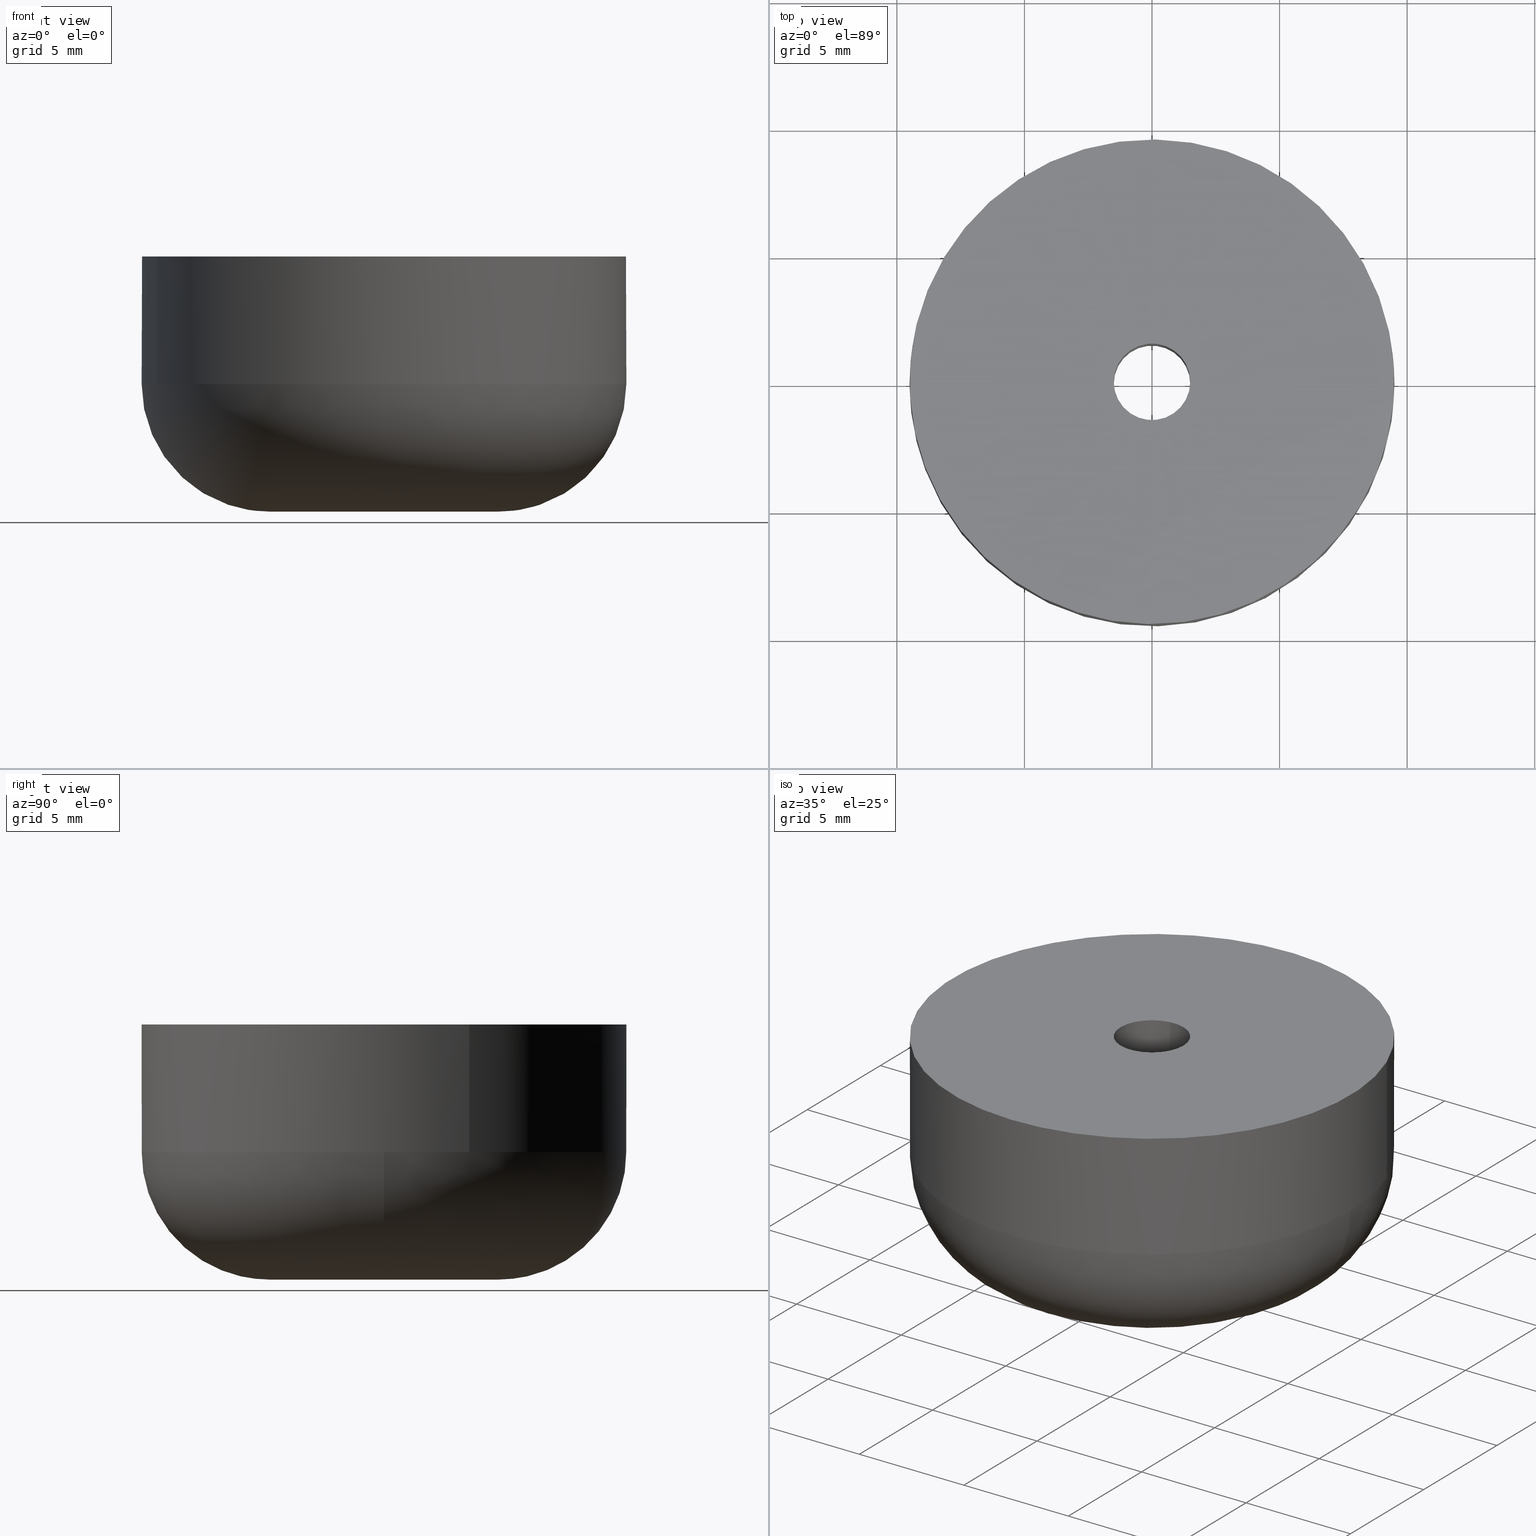
[diagram: canonical four-view strip — front | top / right | iso, engineering-drawing reading convention]
A machine part, canonical four-view strip (front | top / right | iso — engineering-drawing reading convention). The complete STEP part file that produces these views, byte-faithful:
ISO-10303-21;
HEADER;

FILE_DESCRIPTION( (''), '2;1');
FILE_NAME ('PC50.8404.TM_SK_1910_13818.stp','2019-12-20T12:48:28',(''),(''),'spGate 15.6.1','','');

FILE_SCHEMA (('AUTOMOTIVE_DESIGN'));
ENDSEC;

DATA;
#10=(GEOMETRIC_REPRESENTATION_CONTEXT(3) GLOBAL_UNCERTAINTY_ASSIGNED_CONTEXT((#12)) GLOBAL_UNIT_ASSIGNED_CONTEXT((#13,#14,#15)) REPRESENTATION_CONTEXT('ID1','3D'));
#12=UNCERTAINTY_MEASURE_WITH_UNIT(LENGTH_MEASURE(0.01),#16,'DISTANCE_ACCURACY_VALUE','Maximum model space distance between geometric entities at asserted connectivities');
#13=(NAMED_UNIT(*) SI_UNIT($,.STERADIAN.) SOLID_ANGLE_UNIT());
#14=(CONVERSION_BASED_UNIT('DEGREE',#35) NAMED_UNIT(#36) PLANE_ANGLE_UNIT());
#15=(LENGTH_UNIT() NAMED_UNIT(*) SI_UNIT(.MILLI.,.METRE.));
#16=(LENGTH_UNIT() NAMED_UNIT(*) SI_UNIT(.MILLI.,.METRE.));
#17=AXIS2_PLACEMENT_3D('',#38,#39,#40);
#18=AXIS2_PLACEMENT_3D('',#41,#42,#43);
#19=PRODUCT_DEFINITION('','',#48,#49);
#20=AXIS2_PLACEMENT_3D('',#50,#51,#52);
#21=AXIS2_PLACEMENT_3D('',#53,#54,#55);
#22=SHAPE_REPRESENTATION('Assembly',(#18,#20,#21),#10);
#23=AXIS2_PLACEMENT_3D('',#58,#59,#60);
#24=PRODUCT_DEFINITION('','',#65,#66);
#25=SHAPE_REPRESENTATION('washer',(#23),#10);
#26=ITEM_DEFINED_TRANSFORMATION('','',#20,#23);
#27=(REPRESENTATION_RELATIONSHIP('','',#22,#25) REPRESENTATION_RELATIONSHIP_WITH_TRANSFORMATION(#26) SHAPE_REPRESENTATION_RELATIONSHIP());
#29=AXIS2_PLACEMENT_3D('',#73,#74,#75);
#30=PRODUCT_DEFINITION('','',#80,#81);
#31=SHAPE_REPRESENTATION('rubber foot',(#29),#10);
#32=ITEM_DEFINED_TRANSFORMATION('','',#21,#29);
#33=(REPRESENTATION_RELATIONSHIP('','',#22,#31) REPRESENTATION_RELATIONSHIP_WITH_TRANSFORMATION(#32) SHAPE_REPRESENTATION_RELATIONSHIP());
#35=PLANE_ANGLE_MEASURE_WITH_UNIT(PLANE_ANGLE_MEASURE(0.01745329252),#37);
#36=DIMENSIONAL_EXPONENTS(0.0,0.0,0.0,0.0,0.0,0.0,0.0);
#37=(NAMED_UNIT(*) PLANE_ANGLE_UNIT() SI_UNIT($,.RADIAN.));
#38=CARTESIAN_POINT('',(0.00000000000E+000,0.00000000000E+000,0.00000000000E+000));
#39=DIRECTION('',(0.00000000000E+000,0.00000000000E+000,1.00000000000E+000));
#40=DIRECTION('',(1.00000000000E+000,0.00000000000E+000,0.00000000000E+000));
#41=CARTESIAN_POINT('',(0.00000000000E+000,0.00000000000E+000,0.00000000000E+000));
#42=DIRECTION('',(0.00000000000E+000,0.00000000000E+000,1.00000000000E+000));
#43=DIRECTION('',(1.00000000000E+000,0.00000000000E+000,0.00000000000E+000));
#44=APPLICATION_CONTEXT('configuration controlled 3d designs of mechanical parts and assemblies');
#45=APPLICATION_PROTOCOL_DEFINITION('International Standard','automotive_design',1999,#44);
#46=PRODUCT_CONTEXT('',#44,'');
#47=PRODUCT('Assembly','Assembly','',(#46));
#48=PRODUCT_DEFINITION_FORMATION_WITH_SPECIFIED_SOURCE('','',#47,.NOT_KNOWN.);
#49=PRODUCT_DEFINITION_CONTEXT('design',#44,'');
#50=CARTESIAN_POINT('',(0.00000000000E+000,0.00000000000E+000,0.00000000000E+000));
#51=DIRECTION('',(0.00000000000E+000,0.00000000000E+000,1.00000000000E+000));
#52=DIRECTION('',(1.00000000000E+000,0.00000000000E+000,0.00000000000E+000));
#53=CARTESIAN_POINT('',(0.00000000000E+000,0.00000000000E+000,0.00000000000E+000));
#54=DIRECTION('',(0.00000000000E+000,0.00000000000E+000,1.00000000000E+000));
#55=DIRECTION('',(1.00000000000E+000,0.00000000000E+000,0.00000000000E+000));
#56=PRODUCT_DEFINITION_SHAPE('','',#19);
#57=SHAPE_DEFINITION_REPRESENTATION(#56,#22);
#58=CARTESIAN_POINT('',(0.00000000000E+000,0.00000000000E+000,0.00000000000E+000));
#59=DIRECTION('',(0.00000000000E+000,0.00000000000E+000,1.00000000000E+000));
#60=DIRECTION('',(1.00000000000E+000,0.00000000000E+000,0.00000000000E+000));
#61=APPLICATION_CONTEXT('configuration controlled 3d designs of mechanical parts and assemblies');
#62=APPLICATION_PROTOCOL_DEFINITION('International Standard','automotive_design',1999,#61);
#63=PRODUCT_CONTEXT('',#61,'');
#64=PRODUCT('washer','washer','',(#63));
#65=PRODUCT_DEFINITION_FORMATION_WITH_SPECIFIED_SOURCE('','',#64,.NOT_KNOWN.);
#66=PRODUCT_DEFINITION_CONTEXT('design',#61,'');
#67=PRODUCT_DEFINITION_SHAPE('','',#24);
#68=SHAPE_DEFINITION_REPRESENTATION(#67,#25);
#69=NEXT_ASSEMBLY_USAGE_OCCURRENCE('','','',#19,#24,'');
#70=PRODUCT_DEFINITION_SHAPE('','',#69);
#71=CONTEXT_DEPENDENT_SHAPE_REPRESENTATION(#27,#70);
#73=CARTESIAN_POINT('',(0.00000000000E+000,0.00000000000E+000,0.00000000000E+000));
#74=DIRECTION('',(0.00000000000E+000,0.00000000000E+000,1.00000000000E+000));
#75=DIRECTION('',(1.00000000000E+000,0.00000000000E+000,0.00000000000E+000));
#76=APPLICATION_CONTEXT('configuration controlled 3d designs of mechanical parts and assemblies');
#77=APPLICATION_PROTOCOL_DEFINITION('International Standard','automotive_design',1999,#76);
#78=PRODUCT_CONTEXT('',#76,'');
#79=PRODUCT('rubber foot','rubber foot','',(#78));
#80=PRODUCT_DEFINITION_FORMATION_WITH_SPECIFIED_SOURCE('','',#79,.NOT_KNOWN.);
#81=PRODUCT_DEFINITION_CONTEXT('design',#76,'');
#82=PRODUCT_DEFINITION_SHAPE('','',#30);
#83=SHAPE_DEFINITION_REPRESENTATION(#82,#31);
#84=NEXT_ASSEMBLY_USAGE_OCCURRENCE('','','',#19,#30,'');
#85=PRODUCT_DEFINITION_SHAPE('','',#84);
#86=CONTEXT_DEPENDENT_SHAPE_REPRESENTATION(#33,#85);
#88=SHAPE_REPRESENTATION_RELATIONSHIP('','',#25,#91);
#89=SHAPE_REPRESENTATION_RELATIONSHIP('','',#31,#93);
#90=MANIFOLD_SOLID_BREP('washer',#94);
#91=ADVANCED_BREP_SHAPE_REPRESENTATION('washer',(#90),#10);
#92=MANIFOLD_SOLID_BREP('rubber foot',#103);
#93=ADVANCED_BREP_SHAPE_REPRESENTATION('rubber foot',(#92),#10);
#94=CLOSED_SHELL('',(#112,#113,#114,#115,#116,#117));
#95=COLOUR_RGB('',0.00000000000E+000,0.00000000000E+000,0.00000000000E+000);
#96=FILL_AREA_STYLE_COLOUR('',#95);
#97=FILL_AREA_STYLE('',(#96));
#98=SURFACE_STYLE_FILL_AREA(#97);
#99=SURFACE_SIDE_STYLE('',(#98));
#100=SURFACE_STYLE_USAGE(.BOTH.,#99);
#101=PRESENTATION_STYLE_ASSIGNMENT((#100));
#102=STYLED_ITEM('',(#101),#90);
#103=CLOSED_SHELL('',(#118,#119,#120,#121,#122,#123,#124,#125,#126,#127,#128,#129,#130,#131));
#104=COLOUR_RGB('',0.00000000000E+000,0.00000000000E+000,0.00000000000E+000);
#105=FILL_AREA_STYLE_COLOUR('',#104);
#106=FILL_AREA_STYLE('',(#105));
#107=SURFACE_STYLE_FILL_AREA(#106);
#108=SURFACE_SIDE_STYLE('',(#107));
#109=SURFACE_STYLE_USAGE(.BOTH.,#108);
#110=PRESENTATION_STYLE_ASSIGNMENT((#109));
#111=STYLED_ITEM('',(#110),#92);
#112=ADVANCED_FACE('',(#133,#134),#132,.F.);
#113=ADVANCED_FACE('',(#144,#145),#143,.F.);
#114=ADVANCED_FACE('',(#155),#154,.F.);
#115=ADVANCED_FACE('',(#165),#164,.F.);
#116=ADVANCED_FACE('',(#175),#174,.T.);
#117=ADVANCED_FACE('',(#185),#184,.T.);
#118=ADVANCED_FACE('',(#195,#196),#194,.F.);
#119=ADVANCED_FACE('',(#206,#207),#205,.F.);
#120=ADVANCED_FACE('',(#217,#218),#216,.F.);
#121=ADVANCED_FACE('',(#228,#229),#227,.F.);
#122=ADVANCED_FACE('',(#239),#238,.T.);
#123=ADVANCED_FACE('',(#249),#248,.T.);
#124=ADVANCED_FACE('',(#259),#258,.F.);
#125=ADVANCED_FACE('',(#269),#268,.F.);
#126=ADVANCED_FACE('',(#279),#278,.T.);
#127=ADVANCED_FACE('',(#289),#288,.T.);
#128=ADVANCED_FACE('',(#299),#298,.F.);
#129=ADVANCED_FACE('',(#309),#308,.F.);
#130=ADVANCED_FACE('',(#319),#318,.F.);
#131=ADVANCED_FACE('',(#329),#328,.F.);
#132=PLANE('',#341);
#133=FACE_OUTER_BOUND('',#342,.T.);
#134=FACE_BOUND('',#343,.T.);
#135=COLOUR_RGB('',1.00000000000E+000,1.00000000000E+000,1.00000000000E+000);
#136=FILL_AREA_STYLE_COLOUR('',#135);
#137=FILL_AREA_STYLE('',(#136));
#138=SURFACE_STYLE_FILL_AREA(#137);
#139=SURFACE_SIDE_STYLE('',(#138));
#140=SURFACE_STYLE_USAGE(.BOTH.,#139);
#141=PRESENTATION_STYLE_ASSIGNMENT((#140));
#142=STYLED_ITEM('',(#141),#112);
#143=PLANE('',#347);
#144=FACE_OUTER_BOUND('',#348,.T.);
#145=FACE_BOUND('',#349,.T.);
#146=COLOUR_RGB('',1.00000000000E+000,1.00000000000E+000,1.00000000000E+000);
#147=FILL_AREA_STYLE_COLOUR('',#146);
#148=FILL_AREA_STYLE('',(#147));
#149=SURFACE_STYLE_FILL_AREA(#148);
#150=SURFACE_SIDE_STYLE('',(#149));
#151=SURFACE_STYLE_USAGE(.BOTH.,#150);
#152=PRESENTATION_STYLE_ASSIGNMENT((#151));
#153=STYLED_ITEM('',(#152),#113);
#154=CYLINDRICAL_SURFACE('',#353,1.50000000000E+000);
#155=FACE_OUTER_BOUND('',#354,.T.);
#156=COLOUR_RGB('',1.00000000000E+000,1.00000000000E+000,1.00000000000E+000);
#157=FILL_AREA_STYLE_COLOUR('',#156);
#158=FILL_AREA_STYLE('',(#157));
#159=SURFACE_STYLE_FILL_AREA(#158);
#160=SURFACE_SIDE_STYLE('',(#159));
#161=SURFACE_STYLE_USAGE(.BOTH.,#160);
#162=PRESENTATION_STYLE_ASSIGNMENT((#161));
#163=STYLED_ITEM('',(#162),#114);
#164=CYLINDRICAL_SURFACE('',#358,1.50000000000E+000);
#165=FACE_OUTER_BOUND('',#359,.T.);
#166=COLOUR_RGB('',1.00000000000E+000,1.00000000000E+000,1.00000000000E+000);
#167=FILL_AREA_STYLE_COLOUR('',#166);
#168=FILL_AREA_STYLE('',(#167));
#169=SURFACE_STYLE_FILL_AREA(#168);
#170=SURFACE_SIDE_STYLE('',(#169));
#171=SURFACE_STYLE_USAGE(.BOTH.,#170);
#172=PRESENTATION_STYLE_ASSIGNMENT((#171));
#173=STYLED_ITEM('',(#172),#115);
#174=CYLINDRICAL_SURFACE('',#363,4.50000000000E+000);
#175=FACE_OUTER_BOUND('',#364,.T.);
#176=COLOUR_RGB('',1.00000000000E+000,1.00000000000E+000,1.00000000000E+000);
#177=FILL_AREA_STYLE_COLOUR('',#176);
#178=FILL_AREA_STYLE('',(#177));
#179=SURFACE_STYLE_FILL_AREA(#178);
#180=SURFACE_SIDE_STYLE('',(#179));
#181=SURFACE_STYLE_USAGE(.BOTH.,#180);
#182=PRESENTATION_STYLE_ASSIGNMENT((#181));
#183=STYLED_ITEM('',(#182),#116);
#184=CYLINDRICAL_SURFACE('',#368,4.50000000000E+000);
#185=FACE_OUTER_BOUND('',#369,.T.);
#186=COLOUR_RGB('',1.00000000000E+000,1.00000000000E+000,1.00000000000E+000);
#187=FILL_AREA_STYLE_COLOUR('',#186);
#188=FILL_AREA_STYLE('',(#187));
#189=SURFACE_STYLE_FILL_AREA(#188);
#190=SURFACE_SIDE_STYLE('',(#189));
#191=SURFACE_STYLE_USAGE(.BOTH.,#190);
#192=PRESENTATION_STYLE_ASSIGNMENT((#191));
#193=STYLED_ITEM('',(#192),#117);
#194=PLANE('',#373);
#195=FACE_OUTER_BOUND('',#374,.T.);
#196=FACE_BOUND('',#375,.T.);
#197=COLOUR_RGB('',1.00000000000E+000,1.00000000000E+000,1.00000000000E+000);
#198=FILL_AREA_STYLE_COLOUR('',#197);
#199=FILL_AREA_STYLE('',(#198));
#200=SURFACE_STYLE_FILL_AREA(#199);
#201=SURFACE_SIDE_STYLE('',(#200));
#202=SURFACE_STYLE_USAGE(.BOTH.,#201);
#203=PRESENTATION_STYLE_ASSIGNMENT((#202));
#204=STYLED_ITEM('',(#203),#118);
#205=PLANE('',#379);
#206=FACE_OUTER_BOUND('',#380,.T.);
#207=FACE_BOUND('',#381,.T.);
#208=COLOUR_RGB('',1.00000000000E+000,1.00000000000E+000,1.00000000000E+000);
#209=FILL_AREA_STYLE_COLOUR('',#208);
#210=FILL_AREA_STYLE('',(#209));
#211=SURFACE_STYLE_FILL_AREA(#210);
#212=SURFACE_SIDE_STYLE('',(#211));
#213=SURFACE_STYLE_USAGE(.BOTH.,#212);
#214=PRESENTATION_STYLE_ASSIGNMENT((#213));
#215=STYLED_ITEM('',(#214),#119);
#216=PLANE('',#385);
#217=FACE_OUTER_BOUND('',#386,.T.);
#218=FACE_BOUND('',#387,.T.);
#219=COLOUR_RGB('',1.00000000000E+000,1.00000000000E+000,1.00000000000E+000);
#220=FILL_AREA_STYLE_COLOUR('',#219);
#221=FILL_AREA_STYLE('',(#220));
#222=SURFACE_STYLE_FILL_AREA(#221);
#223=SURFACE_SIDE_STYLE('',(#222));
#224=SURFACE_STYLE_USAGE(.BOTH.,#223);
#225=PRESENTATION_STYLE_ASSIGNMENT((#224));
#226=STYLED_ITEM('',(#225),#120);
#227=PLANE('',#391);
#228=FACE_OUTER_BOUND('',#392,.T.);
#229=FACE_BOUND('',#393,.T.);
#230=COLOUR_RGB('',1.00000000000E+000,1.00000000000E+000,1.00000000000E+000);
#231=FILL_AREA_STYLE_COLOUR('',#230);
#232=FILL_AREA_STYLE('',(#231));
#233=SURFACE_STYLE_FILL_AREA(#232);
#234=SURFACE_SIDE_STYLE('',(#233));
#235=SURFACE_STYLE_USAGE(.BOTH.,#234);
#236=PRESENTATION_STYLE_ASSIGNMENT((#235));
#237=STYLED_ITEM('',(#236),#121);
#238=( BOUNDED_SURFACE() B_SPLINE_SURFACE( 2,2,((#394,#395,#396,#397,#398),(#399,#400,#401,#402,#403),(#404,#405,#406,#407,#408),(#409,#410,#411,#412,#413),(#414,#415,#416,#417,#418)), .UNSPECIFIED.,.F.,.F.,.F.) B_SPLINE_SURFACE_WITH_KNOTS((3,2,3),(3,2,3),(3.35134638810E-014,1.34528292090E+000,2.69056584179E+000),(0.00000000000E+000,1.57079632679E+000,3.14159265359E+000), .UNSPECIFIED. ) GEOMETRIC_REPRESENTATION_ITEM() RATIONAL_B_SPLINE_SURFACE(((1.00000000000E+000,7.07106781187E-001,1.00000000000E+000,7.07106781187E-001,1.00000000000E+000),(7.82178623382E-001,5.53083808692E-001,7.82178623382E-001,5.53083808692E-001,7.82178623382E-001),(1.00000000000E+000,7.07106781187E-001,1.00000000000E+000,7.07106781187E-001,1.00000000000E+000),(7.82178623382E-001,5.53083808692E-001,7.82178623382E-001,5.53083808692E-001,7.82178623382E-001),(1.00000000000E+000,7.07106781187E-001,1.00000000000E+000,7.07106781187E-001,1.00000000000E+000))) REPRESENTATION_ITEM('') SURFACE() );
#239=FACE_OUTER_BOUND('',#419,.T.);
#240=COLOUR_RGB('',1.00000000000E+000,1.00000000000E+000,1.00000000000E+000);
#241=FILL_AREA_STYLE_COLOUR('',#240);
#242=FILL_AREA_STYLE('',(#241));
#243=SURFACE_STYLE_FILL_AREA(#242);
#244=SURFACE_SIDE_STYLE('',(#243));
#245=SURFACE_STYLE_USAGE(.BOTH.,#244);
#246=PRESENTATION_STYLE_ASSIGNMENT((#245));
#247=STYLED_ITEM('',(#246),#122);
#248=( BOUNDED_SURFACE() B_SPLINE_SURFACE( 2,2,((#420,#421,#422,#423,#424),(#425,#426,#427,#428,#429),(#430,#431,#432,#433,#434),(#435,#436,#437,#438,#439),(#440,#441,#442,#443,#444)), .UNSPECIFIED.,.F.,.F.,.F.) B_SPLINE_SURFACE_WITH_KNOTS((3,2,3),(3,2,3),(3.35134638810E-014,1.34528292090E+000,2.69056584179E+000),(3.14159265359E+000,4.71238898038E+000,6.28318530718E+000), .UNSPECIFIED. ) GEOMETRIC_REPRESENTATION_ITEM() RATIONAL_B_SPLINE_SURFACE(((1.00000000000E+000,7.07106781187E-001,1.00000000000E+000,7.07106781187E-001,1.00000000000E+000),(7.82178623382E-001,5.53083808692E-001,7.82178623382E-001,5.53083808692E-001,7.82178623382E-001),(1.00000000000E+000,7.07106781187E-001,1.00000000000E+000,7.07106781187E-001,1.00000000000E+000),(7.82178623382E-001,5.53083808692E-001,7.82178623382E-001,5.53083808692E-001,7.82178623382E-001),(1.00000000000E+000,7.07106781187E-001,1.00000000000E+000,7.07106781187E-001,1.00000000000E+000))) REPRESENTATION_ITEM('') SURFACE() );
#249=FACE_OUTER_BOUND('',#445,.T.);
#250=COLOUR_RGB('',1.00000000000E+000,1.00000000000E+000,1.00000000000E+000);
#251=FILL_AREA_STYLE_COLOUR('',#250);
#252=FILL_AREA_STYLE('',(#251));
#253=SURFACE_STYLE_FILL_AREA(#252);
#254=SURFACE_SIDE_STYLE('',(#253));
#255=SURFACE_STYLE_USAGE(.BOTH.,#254);
#256=PRESENTATION_STYLE_ASSIGNMENT((#255));
#257=STYLED_ITEM('',(#256),#123);
#258=CYLINDRICAL_SURFACE('',#449,3.50000000000E+000);
#259=FACE_OUTER_BOUND('',#450,.T.);
#260=COLOUR_RGB('',1.00000000000E+000,1.00000000000E+000,1.00000000000E+000);
#261=FILL_AREA_STYLE_COLOUR('',#260);
#262=FILL_AREA_STYLE('',(#261));
#263=SURFACE_STYLE_FILL_AREA(#262);
#264=SURFACE_SIDE_STYLE('',(#263));
#265=SURFACE_STYLE_USAGE(.BOTH.,#264);
#266=PRESENTATION_STYLE_ASSIGNMENT((#265));
#267=STYLED_ITEM('',(#266),#124);
#268=CYLINDRICAL_SURFACE('',#454,3.50000000000E+000);
#269=FACE_OUTER_BOUND('',#455,.T.);
#270=COLOUR_RGB('',1.00000000000E+000,1.00000000000E+000,1.00000000000E+000);
#271=FILL_AREA_STYLE_COLOUR('',#270);
#272=FILL_AREA_STYLE('',(#271));
#273=SURFACE_STYLE_FILL_AREA(#272);
#274=SURFACE_SIDE_STYLE('',(#273));
#275=SURFACE_STYLE_USAGE(.BOTH.,#274);
#276=PRESENTATION_STYLE_ASSIGNMENT((#275));
#277=STYLED_ITEM('',(#276),#125);
#278=CYLINDRICAL_SURFACE('',#459,9.50000000000E+000);
#279=FACE_OUTER_BOUND('',#460,.T.);
#280=COLOUR_RGB('',1.00000000000E+000,1.00000000000E+000,1.00000000000E+000);
#281=FILL_AREA_STYLE_COLOUR('',#280);
#282=FILL_AREA_STYLE('',(#281));
#283=SURFACE_STYLE_FILL_AREA(#282);
#284=SURFACE_SIDE_STYLE('',(#283));
#285=SURFACE_STYLE_USAGE(.BOTH.,#284);
#286=PRESENTATION_STYLE_ASSIGNMENT((#285));
#287=STYLED_ITEM('',(#286),#126);
#288=CYLINDRICAL_SURFACE('',#464,9.50000000000E+000);
#289=FACE_OUTER_BOUND('',#465,.T.);
#290=COLOUR_RGB('',1.00000000000E+000,1.00000000000E+000,1.00000000000E+000);
#291=FILL_AREA_STYLE_COLOUR('',#290);
#292=FILL_AREA_STYLE('',(#291));
#293=SURFACE_STYLE_FILL_AREA(#292);
#294=SURFACE_SIDE_STYLE('',(#293));
#295=SURFACE_STYLE_USAGE(.BOTH.,#294);
#296=PRESENTATION_STYLE_ASSIGNMENT((#295));
#297=STYLED_ITEM('',(#296),#127);
#298=CYLINDRICAL_SURFACE('',#469,1.50000000000E+000);
#299=FACE_OUTER_BOUND('',#470,.T.);
#300=COLOUR_RGB('',1.00000000000E+000,1.00000000000E+000,1.00000000000E+000);
#301=FILL_AREA_STYLE_COLOUR('',#300);
#302=FILL_AREA_STYLE('',(#301));
#303=SURFACE_STYLE_FILL_AREA(#302);
#304=SURFACE_SIDE_STYLE('',(#303));
#305=SURFACE_STYLE_USAGE(.BOTH.,#304);
#306=PRESENTATION_STYLE_ASSIGNMENT((#305));
#307=STYLED_ITEM('',(#306),#128);
#308=CYLINDRICAL_SURFACE('',#474,1.50000000000E+000);
#309=FACE_OUTER_BOUND('',#475,.T.);
#310=COLOUR_RGB('',1.00000000000E+000,1.00000000000E+000,1.00000000000E+000);
#311=FILL_AREA_STYLE_COLOUR('',#310);
#312=FILL_AREA_STYLE('',(#311));
#313=SURFACE_STYLE_FILL_AREA(#312);
#314=SURFACE_SIDE_STYLE('',(#313));
#315=SURFACE_STYLE_USAGE(.BOTH.,#314);
#316=PRESENTATION_STYLE_ASSIGNMENT((#315));
#317=STYLED_ITEM('',(#316),#129);
#318=CYLINDRICAL_SURFACE('',#479,4.50000000000E+000);
#319=FACE_OUTER_BOUND('',#480,.T.);
#320=COLOUR_RGB('',1.00000000000E+000,1.00000000000E+000,1.00000000000E+000);
#321=FILL_AREA_STYLE_COLOUR('',#320);
#322=FILL_AREA_STYLE('',(#321));
#323=SURFACE_STYLE_FILL_AREA(#322);
#324=SURFACE_SIDE_STYLE('',(#323));
#325=SURFACE_STYLE_USAGE(.BOTH.,#324);
#326=PRESENTATION_STYLE_ASSIGNMENT((#325));
#327=STYLED_ITEM('',(#326),#130);
#328=CYLINDRICAL_SURFACE('',#484,4.50000000000E+000);
#329=FACE_OUTER_BOUND('',#485,.T.);
#330=COLOUR_RGB('',1.00000000000E+000,1.00000000000E+000,1.00000000000E+000);
#331=FILL_AREA_STYLE_COLOUR('',#330);
#332=FILL_AREA_STYLE('',(#331));
#333=SURFACE_STYLE_FILL_AREA(#332);
#334=SURFACE_SIDE_STYLE('',(#333));
#335=SURFACE_STYLE_USAGE(.BOTH.,#334);
#336=PRESENTATION_STYLE_ASSIGNMENT((#335));
#337=STYLED_ITEM('',(#336),#131);
#338=CARTESIAN_POINT('',(-8.75653788682E+000,-6.82109011964E+000,5.00000000000E+000));
#339=DIRECTION('',(0.00000000000E+000,0.00000000000E+000,1.00000000000E+000));
#340=DIRECTION('',(1.00000000000E+000,0.00000000000E+000,0.00000000000E+000));
#341=AXIS2_PLACEMENT_3D('',#338,#339,#340);
#342=EDGE_LOOP('',(#486,#487));
#343=EDGE_LOOP('',(#488,#489));
#344=CARTESIAN_POINT('',(8.75557462511E+000,-1.03695696492E+001,5.50000000000E+000));
#345=DIRECTION('',(0.00000000000E+000,0.00000000000E+000,-1.00000000000E+000));
#346=DIRECTION('',(-1.00000000000E+000,0.00000000000E+000,0.00000000000E+000));
#347=AXIS2_PLACEMENT_3D('',#344,#345,#346);
#348=EDGE_LOOP('',(#490,#491));
#349=EDGE_LOOP('',(#492,#493));
#350=CARTESIAN_POINT('',(-3.89266855304E-016,3.35153437805E-016,5.25000000000E+000));
#351=DIRECTION('',(4.40829880810E-015,5.23993136156E-016,-1.00000000000E+000));
#352=DIRECTION('',(-1.18034234657E-001,9.93009526364E-001,-1.19216604302E-027));
#353=AXIS2_PLACEMENT_3D('',#350,#351,#352);
#354=EDGE_LOOP('',(#494,#495,#496,#497));
#355=CARTESIAN_POINT('',(-3.89266855304E-016,3.35153437805E-016,5.25000000000E+000));
#356=DIRECTION('',(4.40829880810E-015,5.23993136156E-016,-1.00000000000E+000));
#357=DIRECTION('',(-1.18034234657E-001,9.93009526364E-001,-1.19216604302E-027));
#358=AXIS2_PLACEMENT_3D('',#355,#356,#357);
#359=EDGE_LOOP('',(#498,#499,#500,#501));
#360=CARTESIAN_POINT('',(-1.39009965079E-016,2.34160082198E-016,5.25000000000E+000));
#361=DIRECTION('',(1.48535681516E-015,1.76557173133E-016,-1.00000000000E+000));
#362=DIRECTION('',(-1.18034234657E-001,9.93009526364E-001,-1.00254360292E-027));
#363=AXIS2_PLACEMENT_3D('',#360,#361,#362);
#364=EDGE_LOOP('',(#502,#503,#504,#505));
#365=CARTESIAN_POINT('',(-1.39009965079E-016,2.34160082198E-016,5.25000000000E+000));
#366=DIRECTION('',(1.48535681516E-015,1.76557173133E-016,-1.00000000000E+000));
#367=DIRECTION('',(-1.18034234657E-001,9.93009526364E-001,-1.00254360292E-027));
#368=AXIS2_PLACEMENT_3D('',#365,#366,#367);
#369=EDGE_LOOP('',(#506,#507,#508,#509));
#370=CARTESIAN_POINT('',(-5.85000000000E+000,-9.35307436087E+000,4.97379900000E-014));
#371=DIRECTION('',(0.00000000000E+000,0.00000000000E+000,1.00000000000E+000));
#372=DIRECTION('',(1.00000000000E+000,0.00000000000E+000,0.00000000000E+000));
#373=AXIS2_PLACEMENT_3D('',#370,#371,#372);
#374=EDGE_LOOP('',(#510,#511));
#375=EDGE_LOOP('',(#512,#513));
#376=CARTESIAN_POINT('',(-8.75653788682E+000,-6.82109011964E+000,5.50000000000E+000));
#377=DIRECTION('',(0.00000000000E+000,0.00000000000E+000,1.00000000000E+000));
#378=DIRECTION('',(1.00000000000E+000,0.00000000000E+000,0.00000000000E+000));
#379=AXIS2_PLACEMENT_3D('',#376,#377,#378);
#380=EDGE_LOOP('',(#514,#515));
#381=EDGE_LOOP('',(#516,#517));
#382=CARTESIAN_POINT('',(8.75557462577E+000,-1.03695696493E+001,5.00000000000E+000));
#383=DIRECTION('',(0.00000000000E+000,0.00000000000E+000,-1.00000000000E+000));
#384=DIRECTION('',(-1.00000000000E+000,0.00000000000E+000,0.00000000000E+000));
#385=AXIS2_PLACEMENT_3D('',#382,#383,#384);
#386=EDGE_LOOP('',(#518,#519));
#387=EDGE_LOOP('',(#520,#521));
#388=CARTESIAN_POINT('',(1.79275391950E+001,-1.51417448702E+001,1.00000000000E+001));
#389=DIRECTION('',(0.00000000000E+000,0.00000000000E+000,-1.00000000000E+000));
#390=DIRECTION('',(-1.00000000000E+000,0.00000000000E+000,0.00000000000E+000));
#391=AXIS2_PLACEMENT_3D('',#388,#389,#390);
#392=EDGE_LOOP('',(#522,#523));
#393=EDGE_LOOP('',(#524,#525));
#394=CARTESIAN_POINT('',(9.50000000000E+000,-1.92237704283E-015,5.00000000000E+000));
#395=CARTESIAN_POINT('',(9.50000000000E+000,9.50000000000E+000,5.00000000000E+000));
#396=CARTESIAN_POINT('',(-4.63282298808E-015,9.50000000000E+000,5.00000000000E+000));
#397=CARTESIAN_POINT('',(-9.50000000000E+000,9.50000000000E+000,5.00000000000E+000));
#398=CARTESIAN_POINT('',(-9.50000000000E+000,-4.24912911509E-015,5.00000000000E+000));
#399=CARTESIAN_POINT('',(9.50000000000E+000,-1.67364400577E-015,1.01718690893E+000));
#400=CARTESIAN_POINT('',(9.50000000000E+000,9.50000000000E+000,1.01718690893E+000));
#401=CARTESIAN_POINT('',(-4.88155602515E-015,9.50000000000E+000,1.01718690893E+000));
#402=CARTESIAN_POINT('',(-9.50000000000E+000,9.50000000000E+000,1.01718690893E+000));
#403=CARTESIAN_POINT('',(-9.50000000000E+000,-4.00039607803E-015,1.01718690893E+000));
#404=CARTESIAN_POINT('',(5.61803398875E+000,-2.09341363212E-015,1.26602827596E-001));
#405=CARTESIAN_POINT('',(5.61803398875E+000,5.61803398875E+000,1.26602827596E-001));
#406=CARTESIAN_POINT('',(-4.46178639879E-015,5.61803398875E+000,1.26602827596E-001));
#407=CARTESIAN_POINT('',(-5.61803398875E+000,5.61803398875E+000,1.26602827596E-001));
#408=CARTESIAN_POINT('',(-5.61803398875E+000,-3.46938965585E-015,1.26602827596E-001));
#409=CARTESIAN_POINT('',(1.73606797750E+000,-2.51318325848E-015,-7.63981253736E-001));
#410=CARTESIAN_POINT('',(1.73606797750E+000,1.73606797750E+000,-7.63981253736E-001));
#411=CARTESIAN_POINT('',(-4.04201677244E-015,1.73606797750E+000,-7.63981253736E-001));
#412=CARTESIAN_POINT('',(-1.73606797750E+000,1.73606797750E+000,-7.63981253736E-001));
#413=CARTESIAN_POINT('',(-1.73606797750E+000,-2.93838323366E-015,-7.63981253736E-001));
#414=CARTESIAN_POINT('',(-1.77635683940E-015,-2.94964297943E-015,2.82055052823E+000));
#415=CARTESIAN_POINT('',(-1.77635683940E-015,-1.12044276734E-015,2.82055052823E+000));
#416=CARTESIAN_POINT('',(-3.60555705149E-015,-1.12044276734E-015,2.82055052823E+000));
#417=CARTESIAN_POINT('',(-5.43475726357E-015,-1.12044276734E-015,2.82055052823E+000));
#418=CARTESIAN_POINT('',(-5.43475726357E-015,-2.94964297943E-015,2.82055052823E+000));
#419=EDGE_LOOP('',(#526,#527,#528,#529,#530));
#420=CARTESIAN_POINT('',(-9.50000000000E+000,-4.24912911509E-015,5.00000000000E+000));
#421=CARTESIAN_POINT('',(-9.50000000000E+000,-9.50000000000E+000,5.00000000000E+000));
#422=CARTESIAN_POINT('',(-2.30607091582E-015,-9.50000000000E+000,5.00000000000E+000));
#423=CARTESIAN_POINT('',(9.50000000000E+000,-9.50000000000E+000,5.00000000000E+000));
#424=CARTESIAN_POINT('',(9.50000000000E+000,-1.92237704283E-015,5.00000000000E+000));
#425=CARTESIAN_POINT('',(-9.50000000000E+000,-4.00039607803E-015,1.01718690893E+000));
#426=CARTESIAN_POINT('',(-9.50000000000E+000,-9.50000000000E+000,1.01718690893E+000));
#427=CARTESIAN_POINT('',(-2.55480395289E-015,-9.50000000000E+000,1.01718690893E+000));
#428=CARTESIAN_POINT('',(9.50000000000E+000,-9.50000000000E+000,1.01718690893E+000));
#429=CARTESIAN_POINT('',(9.50000000000E+000,-1.67364400577E-015,1.01718690893E+000));
#430=CARTESIAN_POINT('',(-5.61803398875E+000,-3.46938965585E-015,1.26602827596E-001));
#431=CARTESIAN_POINT('',(-5.61803398875E+000,-5.61803398875E+000,1.26602827596E-001));
#432=CARTESIAN_POINT('',(-3.08581037507E-015,-5.61803398875E+000,1.26602827596E-001));
#433=CARTESIAN_POINT('',(5.61803398875E+000,-5.61803398875E+000,1.26602827596E-001));
#434=CARTESIAN_POINT('',(5.61803398875E+000,-2.09341363212E-015,1.26602827596E-001));
#435=CARTESIAN_POINT('',(-1.73606797750E+000,-2.93838323366E-015,-7.63981253736E-001));
#436=CARTESIAN_POINT('',(-1.73606797750E+000,-1.73606797750E+000,-7.63981253736E-001));
#437=CARTESIAN_POINT('',(-3.61681679725E-015,-1.73606797750E+000,-7.63981253736E-001));
#438=CARTESIAN_POINT('',(1.73606797750E+000,-1.73606797750E+000,-7.63981253736E-001));
#439=CARTESIAN_POINT('',(1.73606797750E+000,-2.51318325848E-015,-7.63981253736E-001));
#440=CARTESIAN_POINT('',(-5.43475726357E-015,-2.94964297943E-015,2.82055052823E+000));
#441=CARTESIAN_POINT('',(-5.43475726357E-015,-4.77884319152E-015,2.82055052823E+000));
#442=CARTESIAN_POINT('',(-3.60555705149E-015,-4.77884319152E-015,2.82055052823E+000));
#443=CARTESIAN_POINT('',(-1.77635683940E-015,-4.77884319152E-015,2.82055052823E+000));
#444=CARTESIAN_POINT('',(-1.77635683940E-015,-2.94964297943E-015,2.82055052823E+000));
#445=EDGE_LOOP('',(#531,#532,#533,#534,#535));
#446=CARTESIAN_POINT('',(-7.72292183025E-016,1.99786564258E-016,2.50000000000E+000));
#447=DIRECTION('',(-1.19947021122E-014,-1.29797632162E-015,-1.00000000000E+000));
#448=DIRECTION('',(-1.18034234657E-001,9.93009526364E-001,1.26882631389E-016));
#449=AXIS2_PLACEMENT_3D('',#446,#447,#448);
#450=EDGE_LOOP('',(#536,#537,#538,#539));
#451=CARTESIAN_POINT('',(-7.72292183025E-016,1.99786564258E-016,2.50000000000E+000));
#452=DIRECTION('',(-1.19947021122E-014,-1.29797632162E-015,-1.00000000000E+000));
#453=DIRECTION('',(-1.18034234657E-001,9.93009526364E-001,1.26882631389E-016));
#454=AXIS2_PLACEMENT_3D('',#451,#452,#453);
#455=EDGE_LOOP('',(#540,#541,#542,#543));
#456=CARTESIAN_POINT('',(-2.65010738332E-015,-1.71375119626E-015,7.50000000000E+000));
#457=DIRECTION('',(-1.13927705072E-016,-4.94356713270E-016,-1.00000000000E+000));
#458=DIRECTION('',(9.36143578777E-001,3.51617974392E-001,-2.80477395695E-016));
#459=AXIS2_PLACEMENT_3D('',#456,#457,#458);
#460=EDGE_LOOP('',(#544,#545,#546,#547,#548));
#461=CARTESIAN_POINT('',(-2.65010738332E-015,-1.71375119626E-015,7.50000000000E+000));
#462=DIRECTION('',(-1.13927705072E-016,-4.94356713270E-016,-1.00000000000E+000));
#463=DIRECTION('',(9.36143578777E-001,3.51617974392E-001,-2.80477395695E-016));
#464=AXIS2_PLACEMENT_3D('',#461,#462,#463);
#465=EDGE_LOOP('',(#549,#550,#551,#552,#553));
#466=CARTESIAN_POINT('',(-3.86642984204E-016,3.34626795676E-016,7.75000000000E+000));
#467=DIRECTION('',(-1.37605291648E-015,4.32722529054E-016,-1.00000000000E+000));
#468=DIRECTION('',(-1.18034234657E-001,9.93009526364E-001,5.92118946467E-016));
#469=AXIS2_PLACEMENT_3D('',#466,#467,#468);
#470=EDGE_LOOP('',(#554,#555,#556,#557));
#471=CARTESIAN_POINT('',(-3.86642984204E-016,3.34626795676E-016,7.75000000000E+000));
#472=DIRECTION('',(-1.37605291648E-015,4.32722529054E-016,-1.00000000000E+000));
#473=DIRECTION('',(-1.18034234657E-001,9.93009526364E-001,5.92118946467E-016));
#474=AXIS2_PLACEMENT_3D('',#471,#472,#473);
#475=EDGE_LOOP('',(#558,#559,#560,#561));
#476=CARTESIAN_POINT('',(-1.39009965079E-016,2.34160082198E-016,5.25000000000E+000));
#477=DIRECTION('',(1.48535681516E-015,1.76557173133E-016,-1.00000000000E+000));
#478=DIRECTION('',(-1.18034234657E-001,9.93009526364E-001,-1.00254360292E-027));
#479=AXIS2_PLACEMENT_3D('',#476,#477,#478);
#480=EDGE_LOOP('',(#562,#563,#564,#565));
#481=CARTESIAN_POINT('',(-1.39009965079E-016,2.34160082198E-016,5.25000000000E+000));
#482=DIRECTION('',(1.48535681516E-015,1.76557173133E-016,-1.00000000000E+000));
#483=DIRECTION('',(-1.18034234657E-001,9.93009526364E-001,-1.00254360292E-027));
#484=AXIS2_PLACEMENT_3D('',#481,#482,#483);
#485=EDGE_LOOP('',(#566,#567,#568,#569));
#486=ORIENTED_EDGE('',*,*,#570,.T.);
#487=ORIENTED_EDGE('',*,*,#571,.T.);
#488=ORIENTED_EDGE('',*,*,#572,.F.);
#489=ORIENTED_EDGE('',*,*,#573,.F.);
#490=ORIENTED_EDGE('',*,*,#574,.F.);
#491=ORIENTED_EDGE('',*,*,#575,.F.);
#492=ORIENTED_EDGE('',*,*,#576,.T.);
#493=ORIENTED_EDGE('',*,*,#577,.T.);
#494=ORIENTED_EDGE('',*,*,#577,.F.);
#495=ORIENTED_EDGE('',*,*,#578,.T.);
#496=ORIENTED_EDGE('',*,*,#573,.T.);
#497=ORIENTED_EDGE('',*,*,#579,.F.);
#498=ORIENTED_EDGE('',*,*,#572,.T.);
#499=ORIENTED_EDGE('',*,*,#578,.F.);
#500=ORIENTED_EDGE('',*,*,#576,.F.);
#501=ORIENTED_EDGE('',*,*,#579,.T.);
#502=ORIENTED_EDGE('',*,*,#571,.F.);
#503=ORIENTED_EDGE('',*,*,#580,.F.);
#504=ORIENTED_EDGE('',*,*,#575,.T.);
#505=ORIENTED_EDGE('',*,*,#581,.T.);
#506=ORIENTED_EDGE('',*,*,#574,.T.);
#507=ORIENTED_EDGE('',*,*,#580,.T.);
#508=ORIENTED_EDGE('',*,*,#570,.F.);
#509=ORIENTED_EDGE('',*,*,#581,.F.);
#510=ORIENTED_EDGE('',*,*,#582,.T.);
#511=ORIENTED_EDGE('',*,*,#583,.T.);
#512=ORIENTED_EDGE('',*,*,#584,.F.);
#513=ORIENTED_EDGE('',*,*,#585,.F.);
#514=ORIENTED_EDGE('',*,*,#586,.T.);
#515=ORIENTED_EDGE('',*,*,#587,.T.);
#516=ORIENTED_EDGE('',*,*,#588,.F.);
#517=ORIENTED_EDGE('',*,*,#589,.F.);
#518=ORIENTED_EDGE('',*,*,#590,.F.);
#519=ORIENTED_EDGE('',*,*,#591,.F.);
#520=ORIENTED_EDGE('',*,*,#592,.T.);
#521=ORIENTED_EDGE('',*,*,#593,.T.);
#522=ORIENTED_EDGE('',*,*,#594,.F.);
#523=ORIENTED_EDGE('',*,*,#595,.F.);
#524=ORIENTED_EDGE('',*,*,#596,.T.);
#525=ORIENTED_EDGE('',*,*,#597,.T.);
#526=ORIENTED_EDGE('',*,*,#598,.F.);
#527=ORIENTED_EDGE('',*,*,#599,.F.);
#528=ORIENTED_EDGE('',*,*,#600,.T.);
#529=ORIENTED_EDGE('',*,*,#582,.F.);
#530=ORIENTED_EDGE('',*,*,#601,.F.);
#531=ORIENTED_EDGE('',*,*,#583,.F.);
#532=ORIENTED_EDGE('',*,*,#600,.F.);
#533=ORIENTED_EDGE('',*,*,#602,.F.);
#534=ORIENTED_EDGE('',*,*,#603,.F.);
#535=ORIENTED_EDGE('',*,*,#601,.T.);
#536=ORIENTED_EDGE('',*,*,#593,.F.);
#537=ORIENTED_EDGE('',*,*,#604,.T.);
#538=ORIENTED_EDGE('',*,*,#585,.T.);
#539=ORIENTED_EDGE('',*,*,#605,.F.);
#540=ORIENTED_EDGE('',*,*,#584,.T.);
#541=ORIENTED_EDGE('',*,*,#604,.F.);
#542=ORIENTED_EDGE('',*,*,#592,.F.);
#543=ORIENTED_EDGE('',*,*,#605,.T.);
#544=ORIENTED_EDGE('',*,*,#602,.T.);
#545=ORIENTED_EDGE('',*,*,#599,.T.);
#546=ORIENTED_EDGE('',*,*,#606,.F.);
#547=ORIENTED_EDGE('',*,*,#595,.T.);
#548=ORIENTED_EDGE('',*,*,#607,.T.);
#549=ORIENTED_EDGE('',*,*,#594,.T.);
#550=ORIENTED_EDGE('',*,*,#606,.T.);
#551=ORIENTED_EDGE('',*,*,#598,.T.);
#552=ORIENTED_EDGE('',*,*,#603,.T.);
#553=ORIENTED_EDGE('',*,*,#607,.F.);
#554=ORIENTED_EDGE('',*,*,#597,.F.);
#555=ORIENTED_EDGE('',*,*,#608,.T.);
#556=ORIENTED_EDGE('',*,*,#589,.T.);
#557=ORIENTED_EDGE('',*,*,#609,.F.);
#558=ORIENTED_EDGE('',*,*,#588,.T.);
#559=ORIENTED_EDGE('',*,*,#608,.F.);
#560=ORIENTED_EDGE('',*,*,#596,.F.);
#561=ORIENTED_EDGE('',*,*,#609,.T.);
#562=ORIENTED_EDGE('',*,*,#587,.F.);
#563=ORIENTED_EDGE('',*,*,#610,.T.);
#564=ORIENTED_EDGE('',*,*,#591,.T.);
#565=ORIENTED_EDGE('',*,*,#611,.F.);
#566=ORIENTED_EDGE('',*,*,#590,.T.);
#567=ORIENTED_EDGE('',*,*,#610,.F.);
#568=ORIENTED_EDGE('',*,*,#586,.F.);
#569=ORIENTED_EDGE('',*,*,#611,.T.);
#570=EDGE_CURVE('',#612,#613,#614,.T.);
#571=EDGE_CURVE('',#613,#612,#620,.T.);
#572=EDGE_CURVE('',#626,#627,#628,.T.);
#573=EDGE_CURVE('',#627,#626,#634,.T.);
#574=EDGE_CURVE('',#640,#641,#642,.T.);
#575=EDGE_CURVE('',#641,#640,#648,.T.);
#576=EDGE_CURVE('',#654,#655,#656,.T.);
#577=EDGE_CURVE('',#655,#654,#662,.T.);
#578=EDGE_CURVE('',#655,#627,#668,.T.);
#579=EDGE_CURVE('',#654,#626,#674,.T.);
#580=EDGE_CURVE('',#641,#613,#680,.T.);
#581=EDGE_CURVE('',#640,#612,#686,.T.);
#582=EDGE_CURVE('',#692,#693,#694,.T.);
#583=EDGE_CURVE('',#693,#692,#700,.T.);
#584=EDGE_CURVE('',#706,#707,#708,.T.);
#585=EDGE_CURVE('',#707,#706,#714,.T.);
#586=EDGE_CURVE('',#720,#721,#722,.T.);
#587=EDGE_CURVE('',#721,#720,#728,.T.);
#588=EDGE_CURVE('',#734,#735,#736,.T.);
#589=EDGE_CURVE('',#735,#734,#742,.T.);
#590=EDGE_CURVE('',#748,#749,#750,.T.);
#591=EDGE_CURVE('',#749,#748,#756,.T.);
#592=EDGE_CURVE('',#762,#763,#764,.T.);
#593=EDGE_CURVE('',#763,#762,#770,.T.);
#594=EDGE_CURVE('',#776,#777,#778,.T.);
#595=EDGE_CURVE('',#777,#776,#784,.T.);
#596=EDGE_CURVE('',#790,#791,#792,.T.);
#597=EDGE_CURVE('',#791,#790,#798,.T.);
#598=EDGE_CURVE('',#804,#805,#806,.T.);
#599=EDGE_CURVE('',#812,#804,#813,.T.);
#600=EDGE_CURVE('',#812,#693,#819,.T.);
#601=EDGE_CURVE('',#805,#692,#825,.T.);
#602=EDGE_CURVE('',#831,#812,#832,.T.);
#603=EDGE_CURVE('',#805,#831,#838,.T.);
#604=EDGE_CURVE('',#763,#707,#844,.T.);
#605=EDGE_CURVE('',#762,#706,#850,.T.);
#606=EDGE_CURVE('',#777,#804,#856,.T.);
#607=EDGE_CURVE('',#776,#831,#862,.T.);
#608=EDGE_CURVE('',#791,#735,#868,.T.);
#609=EDGE_CURVE('',#790,#734,#874,.T.);
#610=EDGE_CURVE('',#721,#749,#880,.T.);
#611=EDGE_CURVE('',#720,#748,#886,.T.);
#612=VERTEX_POINT('',#892);
#613=VERTEX_POINT('',#893);
#614=CIRCLE('',#897,4.50000000000E+000);
#615=COLOUR_RGB('',1.00000000000E+000,1.00000000000E+000,1.00000000000E+000);
#616=DRAUGHTING_PRE_DEFINED_CURVE_FONT('continuous');
#617=CURVE_STYLE( '',#616, POSITIVE_LENGTH_MEASURE(1.00000000000E-006),#615);
#618=PRESENTATION_STYLE_ASSIGNMENT((#617));
#619=STYLED_ITEM('',(#618),#570);
#620=CIRCLE('',#901,4.50000000000E+000);
#621=COLOUR_RGB('',1.00000000000E+000,1.00000000000E+000,1.00000000000E+000);
#622=DRAUGHTING_PRE_DEFINED_CURVE_FONT('continuous');
#623=CURVE_STYLE( '',#622, POSITIVE_LENGTH_MEASURE(1.00000000000E-006),#621);
#624=PRESENTATION_STYLE_ASSIGNMENT((#623));
#625=STYLED_ITEM('',(#624),#571);
#626=VERTEX_POINT('',#902);
#627=VERTEX_POINT('',#903);
#628=CIRCLE('',#907,1.50000000000E+000);
#629=COLOUR_RGB('',1.00000000000E+000,1.00000000000E+000,1.00000000000E+000);
#630=DRAUGHTING_PRE_DEFINED_CURVE_FONT('continuous');
#631=CURVE_STYLE( '',#630, POSITIVE_LENGTH_MEASURE(1.00000000000E-006),#629);
#632=PRESENTATION_STYLE_ASSIGNMENT((#631));
#633=STYLED_ITEM('',(#632),#572);
#634=CIRCLE('',#911,1.50000000000E+000);
#635=COLOUR_RGB('',1.00000000000E+000,1.00000000000E+000,1.00000000000E+000);
#636=DRAUGHTING_PRE_DEFINED_CURVE_FONT('continuous');
#637=CURVE_STYLE( '',#636, POSITIVE_LENGTH_MEASURE(1.00000000000E-006),#635);
#638=PRESENTATION_STYLE_ASSIGNMENT((#637));
#639=STYLED_ITEM('',(#638),#573);
#640=VERTEX_POINT('',#912);
#641=VERTEX_POINT('',#913);
#642=CIRCLE('',#917,4.50000000000E+000);
#643=COLOUR_RGB('',1.00000000000E+000,1.00000000000E+000,1.00000000000E+000);
#644=DRAUGHTING_PRE_DEFINED_CURVE_FONT('continuous');
#645=CURVE_STYLE( '',#644, POSITIVE_LENGTH_MEASURE(1.00000000000E-006),#643);
#646=PRESENTATION_STYLE_ASSIGNMENT((#645));
#647=STYLED_ITEM('',(#646),#574);
#648=CIRCLE('',#921,4.50000000000E+000);
#649=COLOUR_RGB('',1.00000000000E+000,1.00000000000E+000,1.00000000000E+000);
#650=DRAUGHTING_PRE_DEFINED_CURVE_FONT('continuous');
#651=CURVE_STYLE( '',#650, POSITIVE_LENGTH_MEASURE(1.00000000000E-006),#649);
#652=PRESENTATION_STYLE_ASSIGNMENT((#651));
#653=STYLED_ITEM('',(#652),#575);
#654=VERTEX_POINT('',#922);
#655=VERTEX_POINT('',#923);
#656=CIRCLE('',#927,1.50000000002E+000);
#657=COLOUR_RGB('',1.00000000000E+000,1.00000000000E+000,1.00000000000E+000);
#658=DRAUGHTING_PRE_DEFINED_CURVE_FONT('continuous');
#659=CURVE_STYLE( '',#658, POSITIVE_LENGTH_MEASURE(1.00000000000E-006),#657);
#660=PRESENTATION_STYLE_ASSIGNMENT((#659));
#661=STYLED_ITEM('',(#660),#576);
#662=CIRCLE('',#931,1.50000000002E+000);
#663=COLOUR_RGB('',1.00000000000E+000,1.00000000000E+000,1.00000000000E+000);
#664=DRAUGHTING_PRE_DEFINED_CURVE_FONT('continuous');
#665=CURVE_STYLE( '',#664, POSITIVE_LENGTH_MEASURE(1.00000000000E-006),#663);
#666=PRESENTATION_STYLE_ASSIGNMENT((#665));
#667=STYLED_ITEM('',(#666),#577);
#668=(BOUNDED_CURVE() B_SPLINE_CURVE(1,(#932,#933),.UNSPECIFIED.,.F.,.F.) B_SPLINE_CURVE_WITH_KNOTS((2,2),(8.33332538610E-002,9.16666666064E-001),.UNSPECIFIED.) CURVE() GEOMETRIC_REPRESENTATION_ITEM() RATIONAL_B_SPLINE_CURVE((1.00000000000E+000,1.00000000000E+000)) REPRESENTATION_ITEM('') );
#669=COLOUR_RGB('',1.00000000000E+000,1.00000000000E+000,1.00000000000E+000);
#670=DRAUGHTING_PRE_DEFINED_CURVE_FONT('continuous');
#671=CURVE_STYLE( '',#670, POSITIVE_LENGTH_MEASURE(1.00000000000E-006),#669);
#672=PRESENTATION_STYLE_ASSIGNMENT((#671));
#673=STYLED_ITEM('',(#672),#578);
#674=(BOUNDED_CURVE() B_SPLINE_CURVE(1,(#934,#935),.UNSPECIFIED.,.F.,.F.) B_SPLINE_CURVE_WITH_KNOTS((2,2),(8.33333333333E-002,9.16666666667E-001),.UNSPECIFIED.) CURVE() GEOMETRIC_REPRESENTATION_ITEM() RATIONAL_B_SPLINE_CURVE((7.50000000000E-001,7.50000000000E-001)) REPRESENTATION_ITEM('') );
#675=COLOUR_RGB('',1.00000000000E+000,1.00000000000E+000,1.00000000000E+000);
#676=DRAUGHTING_PRE_DEFINED_CURVE_FONT('continuous');
#677=CURVE_STYLE( '',#676, POSITIVE_LENGTH_MEASURE(1.00000000000E-006),#675);
#678=PRESENTATION_STYLE_ASSIGNMENT((#677));
#679=STYLED_ITEM('',(#678),#579);
#680=(BOUNDED_CURVE() B_SPLINE_CURVE(1,(#936,#937),.UNSPECIFIED.,.F.,.F.) B_SPLINE_CURVE_WITH_KNOTS((2,2),(8.33332538610E-002,9.16666666064E-001),.UNSPECIFIED.) CURVE() GEOMETRIC_REPRESENTATION_ITEM() RATIONAL_B_SPLINE_CURVE((1.00000000000E+000,1.00000000000E+000)) REPRESENTATION_ITEM('') );
#681=COLOUR_RGB('',1.00000000000E+000,1.00000000000E+000,1.00000000000E+000);
#682=DRAUGHTING_PRE_DEFINED_CURVE_FONT('continuous');
#683=CURVE_STYLE( '',#682, POSITIVE_LENGTH_MEASURE(1.00000000000E-006),#681);
#684=PRESENTATION_STYLE_ASSIGNMENT((#683));
#685=STYLED_ITEM('',(#684),#580);
#686=(BOUNDED_CURVE() B_SPLINE_CURVE(1,(#938,#939),.UNSPECIFIED.,.F.,.F.) B_SPLINE_CURVE_WITH_KNOTS((2,2),(8.33333333333E-002,9.16666666654E-001),.UNSPECIFIED.) CURVE() GEOMETRIC_REPRESENTATION_ITEM() RATIONAL_B_SPLINE_CURVE((7.50000000000E-001,7.50000000000E-001)) REPRESENTATION_ITEM('') );
#687=COLOUR_RGB('',1.00000000000E+000,1.00000000000E+000,1.00000000000E+000);
#688=DRAUGHTING_PRE_DEFINED_CURVE_FONT('continuous');
#689=CURVE_STYLE( '',#688, POSITIVE_LENGTH_MEASURE(1.00000000000E-006),#687);
#690=PRESENTATION_STYLE_ASSIGNMENT((#689));
#691=STYLED_ITEM('',(#690),#581);
#692=VERTEX_POINT('',#940);
#693=VERTEX_POINT('',#941);
#694=CIRCLE('',#945,4.50000000000E+000);
#695=COLOUR_RGB('',1.00000000000E+000,1.00000000000E+000,1.00000000000E+000);
#696=DRAUGHTING_PRE_DEFINED_CURVE_FONT('continuous');
#697=CURVE_STYLE( '',#696, POSITIVE_LENGTH_MEASURE(1.00000000000E-006),#695);
#698=PRESENTATION_STYLE_ASSIGNMENT((#697));
#699=STYLED_ITEM('',(#698),#582);
#700=CIRCLE('',#949,4.50000000000E+000);
#701=COLOUR_RGB('',1.00000000000E+000,1.00000000000E+000,1.00000000000E+000);
#702=DRAUGHTING_PRE_DEFINED_CURVE_FONT('continuous');
#703=CURVE_STYLE( '',#702, POSITIVE_LENGTH_MEASURE(1.00000000000E-006),#701);
#704=PRESENTATION_STYLE_ASSIGNMENT((#703));
#705=STYLED_ITEM('',(#704),#583);
#706=VERTEX_POINT('',#950);
#707=VERTEX_POINT('',#951);
#708=CIRCLE('',#955,3.50000000000E+000);
#709=COLOUR_RGB('',1.00000000000E+000,1.00000000000E+000,1.00000000000E+000);
#710=DRAUGHTING_PRE_DEFINED_CURVE_FONT('continuous');
#711=CURVE_STYLE( '',#710, POSITIVE_LENGTH_MEASURE(1.00000000000E-006),#709);
#712=PRESENTATION_STYLE_ASSIGNMENT((#711));
#713=STYLED_ITEM('',(#712),#584);
#714=CIRCLE('',#959,3.50000000000E+000);
#715=COLOUR_RGB('',1.00000000000E+000,1.00000000000E+000,1.00000000000E+000);
#716=DRAUGHTING_PRE_DEFINED_CURVE_FONT('continuous');
#717=CURVE_STYLE( '',#716, POSITIVE_LENGTH_MEASURE(1.00000000000E-006),#715);
#718=PRESENTATION_STYLE_ASSIGNMENT((#717));
#719=STYLED_ITEM('',(#718),#585);
#720=VERTEX_POINT('',#960);
#721=VERTEX_POINT('',#961);
#722=CIRCLE('',#965,4.50000000000E+000);
#723=COLOUR_RGB('',1.00000000000E+000,1.00000000000E+000,1.00000000000E+000);
#724=DRAUGHTING_PRE_DEFINED_CURVE_FONT('continuous');
#725=CURVE_STYLE( '',#724, POSITIVE_LENGTH_MEASURE(1.00000000000E-006),#723);
#726=PRESENTATION_STYLE_ASSIGNMENT((#725));
#727=STYLED_ITEM('',(#726),#586);
#728=CIRCLE('',#969,4.50000000000E+000);
#729=COLOUR_RGB('',1.00000000000E+000,1.00000000000E+000,1.00000000000E+000);
#730=DRAUGHTING_PRE_DEFINED_CURVE_FONT('continuous');
#731=CURVE_STYLE( '',#730, POSITIVE_LENGTH_MEASURE(1.00000000000E-006),#729);
#732=PRESENTATION_STYLE_ASSIGNMENT((#731));
#733=STYLED_ITEM('',(#732),#587);
#734=VERTEX_POINT('',#970);
#735=VERTEX_POINT('',#971);
#736=CIRCLE('',#975,1.50000000000E+000);
#737=COLOUR_RGB('',1.00000000000E+000,1.00000000000E+000,1.00000000000E+000);
#738=DRAUGHTING_PRE_DEFINED_CURVE_FONT('continuous');
#739=CURVE_STYLE( '',#738, POSITIVE_LENGTH_MEASURE(1.00000000000E-006),#737);
#740=PRESENTATION_STYLE_ASSIGNMENT((#739));
#741=STYLED_ITEM('',(#740),#588);
#742=CIRCLE('',#979,1.50000000000E+000);
#743=COLOUR_RGB('',1.00000000000E+000,1.00000000000E+000,1.00000000000E+000);
#744=DRAUGHTING_PRE_DEFINED_CURVE_FONT('continuous');
#745=CURVE_STYLE( '',#744, POSITIVE_LENGTH_MEASURE(1.00000000000E-006),#743);
#746=PRESENTATION_STYLE_ASSIGNMENT((#745));
#747=STYLED_ITEM('',(#746),#589);
#748=VERTEX_POINT('',#980);
#749=VERTEX_POINT('',#981);
#750=CIRCLE('',#985,4.50000000000E+000);
#751=COLOUR_RGB('',1.00000000000E+000,1.00000000000E+000,1.00000000000E+000);
#752=DRAUGHTING_PRE_DEFINED_CURVE_FONT('continuous');
#753=CURVE_STYLE( '',#752, POSITIVE_LENGTH_MEASURE(1.00000000000E-006),#751);
#754=PRESENTATION_STYLE_ASSIGNMENT((#753));
#755=STYLED_ITEM('',(#754),#590);
#756=CIRCLE('',#989,4.50000000000E+000);
#757=COLOUR_RGB('',1.00000000000E+000,1.00000000000E+000,1.00000000000E+000);
#758=DRAUGHTING_PRE_DEFINED_CURVE_FONT('continuous');
#759=CURVE_STYLE( '',#758, POSITIVE_LENGTH_MEASURE(1.00000000000E-006),#757);
#760=PRESENTATION_STYLE_ASSIGNMENT((#759));
#761=STYLED_ITEM('',(#760),#591);
#762=VERTEX_POINT('',#990);
#763=VERTEX_POINT('',#991);
#764=CIRCLE('',#995,3.50000000000E+000);
#765=COLOUR_RGB('',1.00000000000E+000,1.00000000000E+000,1.00000000000E+000);
#766=DRAUGHTING_PRE_DEFINED_CURVE_FONT('continuous');
#767=CURVE_STYLE( '',#766, POSITIVE_LENGTH_MEASURE(1.00000000000E-006),#765);
#768=PRESENTATION_STYLE_ASSIGNMENT((#767));
#769=STYLED_ITEM('',(#768),#592);
#770=CIRCLE('',#999,3.50000000000E+000);
#771=COLOUR_RGB('',1.00000000000E+000,1.00000000000E+000,1.00000000000E+000);
#772=DRAUGHTING_PRE_DEFINED_CURVE_FONT('continuous');
#773=CURVE_STYLE( '',#772, POSITIVE_LENGTH_MEASURE(1.00000000000E-006),#771);
#774=PRESENTATION_STYLE_ASSIGNMENT((#773));
#775=STYLED_ITEM('',(#774),#593);
#776=VERTEX_POINT('',#1000);
#777=VERTEX_POINT('',#1001);
#778=CIRCLE('',#1005,9.49999999998E+000);
#779=COLOUR_RGB('',1.00000000000E+000,1.00000000000E+000,1.00000000000E+000);
#780=DRAUGHTING_PRE_DEFINED_CURVE_FONT('continuous');
#781=CURVE_STYLE( '',#780, POSITIVE_LENGTH_MEASURE(1.00000000000E-006),#779);
#782=PRESENTATION_STYLE_ASSIGNMENT((#781));
#783=STYLED_ITEM('',(#782),#594);
#784=CIRCLE('',#1009,9.49999999998E+000);
#785=COLOUR_RGB('',1.00000000000E+000,1.00000000000E+000,1.00000000000E+000);
#786=DRAUGHTING_PRE_DEFINED_CURVE_FONT('continuous');
#787=CURVE_STYLE( '',#786, POSITIVE_LENGTH_MEASURE(1.00000000000E-006),#785);
#788=PRESENTATION_STYLE_ASSIGNMENT((#787));
#789=STYLED_ITEM('',(#788),#595);
#790=VERTEX_POINT('',#1010);
#791=VERTEX_POINT('',#1011);
#792=CIRCLE('',#1015,1.50000000000E+000);
#793=COLOUR_RGB('',1.00000000000E+000,1.00000000000E+000,1.00000000000E+000);
#794=DRAUGHTING_PRE_DEFINED_CURVE_FONT('continuous');
#795=CURVE_STYLE( '',#794, POSITIVE_LENGTH_MEASURE(1.00000000000E-006),#793);
#796=PRESENTATION_STYLE_ASSIGNMENT((#795));
#797=STYLED_ITEM('',(#796),#596);
#798=CIRCLE('',#1019,1.50000000000E+000);
#799=COLOUR_RGB('',1.00000000000E+000,1.00000000000E+000,1.00000000000E+000);
#800=DRAUGHTING_PRE_DEFINED_CURVE_FONT('continuous');
#801=CURVE_STYLE( '',#800, POSITIVE_LENGTH_MEASURE(1.00000000000E-006),#799);
#802=PRESENTATION_STYLE_ASSIGNMENT((#801));
#803=STYLED_ITEM('',(#802),#597);
#804=VERTEX_POINT('',#1020);
#805=VERTEX_POINT('',#1021);
#806=CIRCLE('',#1025,9.50000000000E+000);
#807=COLOUR_RGB('',1.00000000000E+000,1.00000000000E+000,1.00000000000E+000);
#808=DRAUGHTING_PRE_DEFINED_CURVE_FONT('continuous');
#809=CURVE_STYLE( '',#808, POSITIVE_LENGTH_MEASURE(1.00000000000E-006),#807);
#810=PRESENTATION_STYLE_ASSIGNMENT((#809));
#811=STYLED_ITEM('',(#810),#598);
#812=VERTEX_POINT('',#1026);
#813=CIRCLE('',#1030,9.50000000000E+000);
#814=COLOUR_RGB('',1.00000000000E+000,1.00000000000E+000,1.00000000000E+000);
#815=DRAUGHTING_PRE_DEFINED_CURVE_FONT('continuous');
#816=CURVE_STYLE( '',#815, POSITIVE_LENGTH_MEASURE(1.00000000000E-006),#814);
#817=PRESENTATION_STYLE_ASSIGNMENT((#816));
#818=STYLED_ITEM('',(#817),#599);
#819=(BOUNDED_CURVE() B_SPLINE_CURVE(2,(#1031,#1032,#1033,#1034,#1035),.UNSPECIFIED.,.F.,.F.) B_SPLINE_CURVE_WITH_KNOTS((3,2,3),(3.35134638810E-014,1.34528292090E+000,1.58047078842E+000),.UNSPECIFIED.) CURVE() GEOMETRIC_REPRESENTATION_ITEM() RATIONAL_B_SPLINE_CURVE((1.00000000000E+000,7.82178623382E-001,1.00000000000E+000,9.61919575227E-001,9.37153901957E-001)) REPRESENTATION_ITEM('') );
#820=COLOUR_RGB('',1.00000000000E+000,1.00000000000E+000,1.00000000000E+000);
#821=DRAUGHTING_PRE_DEFINED_CURVE_FONT('continuous');
#822=CURVE_STYLE( '',#821, POSITIVE_LENGTH_MEASURE(1.00000000000E-006),#820);
#823=PRESENTATION_STYLE_ASSIGNMENT((#822));
#824=STYLED_ITEM('',(#823),#600);
#825=(BOUNDED_CURVE() B_SPLINE_CURVE(2,(#1036,#1037,#1038,#1039,#1040),.UNSPECIFIED.,.F.,.F.) B_SPLINE_CURVE_WITH_KNOTS((3,2,3),(3.35134638810E-014,1.34528292090E+000,1.58047084191E+000),.UNSPECIFIED.) CURVE() GEOMETRIC_REPRESENTATION_ITEM() RATIONAL_B_SPLINE_CURVE((1.00000000000E+000,7.82178623382E-001,1.00000000000E+000,9.61919566566E-001,9.37153890692E-001)) REPRESENTATION_ITEM('') );
#826=COLOUR_RGB('',1.00000000000E+000,1.00000000000E+000,1.00000000000E+000);
#827=DRAUGHTING_PRE_DEFINED_CURVE_FONT('continuous');
#828=CURVE_STYLE( '',#827, POSITIVE_LENGTH_MEASURE(1.00000000000E-006),#826);
#829=PRESENTATION_STYLE_ASSIGNMENT((#828));
#830=STYLED_ITEM('',(#829),#601);
#831=VERTEX_POINT('',#1041);
#832=CIRCLE('',#1045,9.50000000000E+000);
#833=COLOUR_RGB('',1.00000000000E+000,1.00000000000E+000,1.00000000000E+000);
#834=DRAUGHTING_PRE_DEFINED_CURVE_FONT('continuous');
#835=CURVE_STYLE( '',#834, POSITIVE_LENGTH_MEASURE(1.00000000000E-006),#833);
#836=PRESENTATION_STYLE_ASSIGNMENT((#835));
#837=STYLED_ITEM('',(#836),#602);
#838=CIRCLE('',#1049,9.50000000000E+000);
#839=COLOUR_RGB('',1.00000000000E+000,1.00000000000E+000,1.00000000000E+000);
#840=DRAUGHTING_PRE_DEFINED_CURVE_FONT('continuous');
#841=CURVE_STYLE( '',#840, POSITIVE_LENGTH_MEASURE(1.00000000000E-006),#839);
#842=PRESENTATION_STYLE_ASSIGNMENT((#841));
#843=STYLED_ITEM('',(#842),#603);
#844=(BOUNDED_CURVE() B_SPLINE_CURVE(1,(#1050,#1051),.UNSPECIFIED.,.F.,.F.) B_SPLINE_CURVE_WITH_KNOTS((2,2),(8.33333383004E-002,9.16666664635E-001),.UNSPECIFIED.) CURVE() GEOMETRIC_REPRESENTATION_ITEM() RATIONAL_B_SPLINE_CURVE((1.00000000000E+000,1.00000000000E+000)) REPRESENTATION_ITEM('') );
#845=COLOUR_RGB('',1.00000000000E+000,1.00000000000E+000,1.00000000000E+000);
#846=DRAUGHTING_PRE_DEFINED_CURVE_FONT('continuous');
#847=CURVE_STYLE( '',#846, POSITIVE_LENGTH_MEASURE(1.00000000000E-006),#845);
#848=PRESENTATION_STYLE_ASSIGNMENT((#847));
#849=STYLED_ITEM('',(#848),#604);
#850=(BOUNDED_CURVE() B_SPLINE_CURVE(1,(#1052,#1053),.UNSPECIFIED.,.F.,.F.) B_SPLINE_CURVE_WITH_KNOTS((2,2),(8.33333333333E-002,9.16666666667E-001),.UNSPECIFIED.) CURVE() GEOMETRIC_REPRESENTATION_ITEM() RATIONAL_B_SPLINE_CURVE((7.50000000000E-001,7.50000000000E-001)) REPRESENTATION_ITEM('') );
#851=COLOUR_RGB('',1.00000000000E+000,1.00000000000E+000,1.00000000000E+000);
#852=DRAUGHTING_PRE_DEFINED_CURVE_FONT('continuous');
#853=CURVE_STYLE( '',#852, POSITIVE_LENGTH_MEASURE(1.00000000000E-006),#851);
#854=PRESENTATION_STYLE_ASSIGNMENT((#853));
#855=STYLED_ITEM('',(#854),#605);
#856=(BOUNDED_CURVE() B_SPLINE_CURVE(1,(#1054,#1055),.UNSPECIFIED.,.F.,.F.) B_SPLINE_CURVE_WITH_KNOTS((2,2),(8.33333383004E-002,9.16666664635E-001),.UNSPECIFIED.) CURVE() GEOMETRIC_REPRESENTATION_ITEM() RATIONAL_B_SPLINE_CURVE((1.00000000000E+000,1.00000000000E+000)) REPRESENTATION_ITEM('') );
#857=COLOUR_RGB('',1.00000000000E+000,1.00000000000E+000,1.00000000000E+000);
#858=DRAUGHTING_PRE_DEFINED_CURVE_FONT('continuous');
#859=CURVE_STYLE( '',#858, POSITIVE_LENGTH_MEASURE(1.00000000000E-006),#857);
#860=PRESENTATION_STYLE_ASSIGNMENT((#859));
#861=STYLED_ITEM('',(#860),#606);
#862=(BOUNDED_CURVE() B_SPLINE_CURVE(1,(#1056,#1057),.UNSPECIFIED.,.F.,.F.) B_SPLINE_CURVE_WITH_KNOTS((2,2),(8.33333333334E-002,9.16666666667E-001),.UNSPECIFIED.) CURVE() GEOMETRIC_REPRESENTATION_ITEM() RATIONAL_B_SPLINE_CURVE((7.50000000000E-001,7.50000000000E-001)) REPRESENTATION_ITEM('') );
#863=COLOUR_RGB('',1.00000000000E+000,1.00000000000E+000,1.00000000000E+000);
#864=DRAUGHTING_PRE_DEFINED_CURVE_FONT('continuous');
#865=CURVE_STYLE( '',#864, POSITIVE_LENGTH_MEASURE(1.00000000000E-006),#863);
#866=PRESENTATION_STYLE_ASSIGNMENT((#865));
#867=STYLED_ITEM('',(#866),#607);
#868=(BOUNDED_CURVE() B_SPLINE_CURVE(1,(#1058,#1059),.UNSPECIFIED.,.F.,.F.) B_SPLINE_CURVE_WITH_KNOTS((2,2),(8.33333313467E-002,9.16666670832E-001),.UNSPECIFIED.) CURVE() GEOMETRIC_REPRESENTATION_ITEM() RATIONAL_B_SPLINE_CURVE((1.00000000000E+000,1.00000000000E+000)) REPRESENTATION_ITEM('') );
#869=COLOUR_RGB('',1.00000000000E+000,1.00000000000E+000,1.00000000000E+000);
#870=DRAUGHTING_PRE_DEFINED_CURVE_FONT('continuous');
#871=CURVE_STYLE( '',#870, POSITIVE_LENGTH_MEASURE(1.00000000000E-006),#869);
#872=PRESENTATION_STYLE_ASSIGNMENT((#871));
#873=STYLED_ITEM('',(#872),#608);
#874=(BOUNDED_CURVE() B_SPLINE_CURVE(1,(#1060,#1061),.UNSPECIFIED.,.F.,.F.) B_SPLINE_CURVE_WITH_KNOTS((2,2),(8.33333333333E-002,9.16666666667E-001),.UNSPECIFIED.) CURVE() GEOMETRIC_REPRESENTATION_ITEM() RATIONAL_B_SPLINE_CURVE((7.50000000000E-001,7.50000000000E-001)) REPRESENTATION_ITEM('') );
#875=COLOUR_RGB('',1.00000000000E+000,1.00000000000E+000,1.00000000000E+000);
#876=DRAUGHTING_PRE_DEFINED_CURVE_FONT('continuous');
#877=CURVE_STYLE( '',#876, POSITIVE_LENGTH_MEASURE(1.00000000000E-006),#875);
#878=PRESENTATION_STYLE_ASSIGNMENT((#877));
#879=STYLED_ITEM('',(#878),#609);
#880=(BOUNDED_CURVE() B_SPLINE_CURVE(1,(#1062,#1063),.UNSPECIFIED.,.F.,.F.) B_SPLINE_CURVE_WITH_KNOTS((2,2),(8.33334128067E-002,9.16666680514E-001),.UNSPECIFIED.) CURVE() GEOMETRIC_REPRESENTATION_ITEM() RATIONAL_B_SPLINE_CURVE((1.00000000000E+000,1.00000000000E+000)) REPRESENTATION_ITEM('') );
#881=COLOUR_RGB('',1.00000000000E+000,1.00000000000E+000,1.00000000000E+000);
#882=DRAUGHTING_PRE_DEFINED_CURVE_FONT('continuous');
#883=CURVE_STYLE( '',#882, POSITIVE_LENGTH_MEASURE(1.00000000000E-006),#881);
#884=PRESENTATION_STYLE_ASSIGNMENT((#883));
#885=STYLED_ITEM('',(#884),#610);
#886=(BOUNDED_CURVE() B_SPLINE_CURVE(1,(#1064,#1065),.UNSPECIFIED.,.F.,.F.) B_SPLINE_CURVE_WITH_KNOTS((2,2),(8.33333333431E-002,9.16666666667E-001),.UNSPECIFIED.) CURVE() GEOMETRIC_REPRESENTATION_ITEM() RATIONAL_B_SPLINE_CURVE((7.50000000000E-001,7.50000000000E-001)) REPRESENTATION_ITEM('') );
#887=COLOUR_RGB('',1.00000000000E+000,1.00000000000E+000,1.00000000000E+000);
#888=DRAUGHTING_PRE_DEFINED_CURVE_FONT('continuous');
#889=CURVE_STYLE( '',#888, POSITIVE_LENGTH_MEASURE(1.00000000000E-006),#887);
#890=PRESENTATION_STYLE_ASSIGNMENT((#889));
#891=STYLED_ITEM('',(#890),#611);
#892=CARTESIAN_POINT('',(5.31154054643E-001,-4.46854286879E+000,5.00000000000E+000));
#893=CARTESIAN_POINT('',(-5.31154055956E-001,4.46854286864E+000,5.00000000000E+000));
#894=CARTESIAN_POINT('',(2.79221090693E-012,1.26831878333E-012,5.00000000000E+000));
#895=DIRECTION('',(8.55414504664E-013,1.27922444871E-013,-1.00000000000E+000));
#896=DIRECTION('',(1.18034234365E-001,-9.93009526398E-001,-2.60600102748E-014));
#897=AXIS2_PLACEMENT_3D('',#894,#895,#896);
#898=CARTESIAN_POINT('',(2.79221090693E-012,1.26831878333E-012,5.00000000000E+000));
#899=DIRECTION('',(8.55414504664E-013,1.27922444871E-013,-1.00000000000E+000));
#900=DIRECTION('',(1.18034234365E-001,-9.93009526398E-001,-2.60600102748E-014));
#901=AXIS2_PLACEMENT_3D('',#898,#899,#900);
#902=CARTESIAN_POINT('',(1.77308843490E-001,-1.48948366021E+000,5.00000000000E+000));
#903=CARTESIAN_POINT('',(-1.77308843490E-001,1.48948366021E+000,5.00000000000E+000));
#904=CARTESIAN_POINT('',(4.44089209850E-016,3.33066907388E-016,5.00000000000E+000));
#905=DIRECTION('',(1.01862300020E-014,1.21078406514E-015,-1.00000000000E+000));
#906=DIRECTION('',(-1.18205895660E-001,9.92989106804E-001,-1.77705340482E-018));
#907=AXIS2_PLACEMENT_3D('',#904,#905,#906);
#908=CARTESIAN_POINT('',(4.44089209850E-016,3.33066907388E-016,5.00000000000E+000));
#909=DIRECTION('',(1.01862300020E-014,1.21078406514E-015,-1.00000000000E+000));
#910=DIRECTION('',(-1.18205895660E-001,9.92989106804E-001,-1.77705340482E-018));
#911=AXIS2_PLACEMENT_3D('',#908,#909,#910);
#912=CARTESIAN_POINT('',(5.31926370057E-001,-4.46845099971E+000,5.50000000000E+000));
#913=CARTESIAN_POINT('',(-5.31926370052E-001,4.46845099971E+000,5.50000000000E+000));
#914=CARTESIAN_POINT('',(2.72315503480E-012,1.23767662785E-012,5.50000000000E+000));
#915=DIRECTION('',(1.73235196534E-015,2.05916290270E-016,-1.00000000000E+000));
#916=DIRECTION('',(-1.18205860012E-001,9.92989111047E-001,-3.01519881111E-019));
#917=AXIS2_PLACEMENT_3D('',#914,#915,#916);
#918=CARTESIAN_POINT('',(2.72315503480E-012,1.23767662785E-012,5.50000000000E+000));
#919=DIRECTION('',(1.73235196534E-015,2.05916290270E-016,-1.00000000000E+000));
#920=DIRECTION('',(-1.18205860012E-001,9.92989111047E-001,-3.01519881111E-019));
#921=AXIS2_PLACEMENT_3D('',#918,#919,#920);
#922=CARTESIAN_POINT('',(1.77050807278E-001,-1.48951435429E+000,5.50000000000E+000));
#923=CARTESIAN_POINT('',(-1.77051351990E-001,1.48951428958E+000,5.50000000000E+000));
#924=CARTESIAN_POINT('',(-1.84118276181E-011,1.73200342957E-011,5.50000000000E+000));
#925=DIRECTION('',(5.92118946465E-016,-6.28036983474E-016,-1.00000000000E+000));
#926=DIRECTION('',(1.18033871530E-001,-9.93009569527E-001,6.93536826264E-016));
#927=AXIS2_PLACEMENT_3D('',#924,#925,#926);
#928=CARTESIAN_POINT('',(-1.84118276181E-011,1.73200342957E-011,5.50000000000E+000));
#929=DIRECTION('',(5.92118946465E-016,-6.28036983474E-016,-1.00000000000E+000));
#930=DIRECTION('',(1.18033871530E-001,-9.93009569527E-001,6.93536826264E-016));
#931=AXIS2_PLACEMENT_3D('',#928,#929,#930);
#932=CARTESIAN_POINT('',(-1.77051351985E-001,1.48951428955E+000,5.50000004768E+000));
#933=CARTESIAN_POINT('',(-1.77051351985E-001,1.48951428955E+000,5.00000000036E+000));
#934=CARTESIAN_POINT('',(1.77051351985E-001,-1.48951428955E+000,5.50000000000E+000));
#935=CARTESIAN_POINT('',(1.77051351985E-001,-1.48951428955E+000,5.00000000000E+000));
#936=CARTESIAN_POINT('',(-5.31154055956E-001,4.46854286864E+000,5.50000004768E+000));
#937=CARTESIAN_POINT('',(-5.31154055956E-001,4.46854286864E+000,5.00000000035E+000));
#938=CARTESIAN_POINT('',(5.31154055956E-001,-4.46854286864E+000,5.50000000000E+000));
#939=CARTESIAN_POINT('',(5.31154055956E-001,-4.46854286864E+000,5.00000000000E+000));
#940=CARTESIAN_POINT('',(-4.50000000000E+000,-3.50071583865E-015,4.94396190653E-014));
#941=CARTESIAN_POINT('',(4.50000000000E+000,-3.40468394218E-015,4.94396190653E-014));
#942=CARTESIAN_POINT('',(-2.93492664601E-015,-2.94964297943E-015,4.94396190653E-014));
#943=DIRECTION('',(0.00000000000E+000,0.00000000000E+000,-1.00000000000E+000));
#944=DIRECTION('',(-1.00000000000E+000,-0.00000000000E+000,-0.00000000000E+000));
#945=AXIS2_PLACEMENT_3D('',#942,#943,#944);
#946=CARTESIAN_POINT('',(-2.93492664601E-015,-2.94964297943E-015,4.94396190653E-014));
#947=DIRECTION('',(0.00000000000E+000,0.00000000000E+000,-1.00000000000E+000));
#948=DIRECTION('',(-1.00000000000E+000,-0.00000000000E+000,-0.00000000000E+000));
#949=AXIS2_PLACEMENT_3D('',#946,#947,#948);
#950=CARTESIAN_POINT('',(4.13720514207E-001,-3.47546188817E+000,2.63624805855E-015));
#951=CARTESIAN_POINT('',(-4.13720514207E-001,3.47546188817E+000,1.32419206077E-015));
#952=CARTESIAN_POINT('',(1.24122934153E-013,5.59552404411E-014,1.98022005966E-015));
#953=DIRECTION('',(-6.30289241881E-015,-9.39059036296E-016,-1.00000000000E+000));
#954=DIRECTION('',(-1.18205861202E-001,9.92989110906E-001,-1.87436571110E-016));
#955=AXIS2_PLACEMENT_3D('',#952,#953,#954);
#956=CARTESIAN_POINT('',(1.24122934153E-013,5.59552404411E-014,1.98022005966E-015));
#957=DIRECTION('',(-6.30289241881E-015,-9.39059036296E-016,-1.00000000000E+000));
#958=DIRECTION('',(-1.18205861202E-001,9.92989110906E-001,-1.87436571110E-016));
#959=AXIS2_PLACEMENT_3D('',#956,#957,#958);
#960=CARTESIAN_POINT('',(5.31154054643E-001,-4.46854286879E+000,5.50000000000E+000));
#961=CARTESIAN_POINT('',(-5.31154055956E-001,4.46854286864E+000,5.50000000000E+000));
#962=CARTESIAN_POINT('',(2.78754797023E-012,1.26565424807E-012,5.50000000000E+000));
#963=DIRECTION('',(-8.56203996592E-013,-1.27621061029E-013,-1.00000000000E+000));
#964=DIRECTION('',(1.18034234365E-001,-9.93009526398E-001,2.56675461732E-014));
#965=AXIS2_PLACEMENT_3D('',#962,#963,#964);
#966=CARTESIAN_POINT('',(2.78754797023E-012,1.26565424807E-012,5.50000000000E+000));
#967=DIRECTION('',(-8.56203996592E-013,-1.27621061029E-013,-1.00000000000E+000));
#968=DIRECTION('',(1.18034234365E-001,-9.93009526398E-001,2.56675461732E-014));
#969=AXIS2_PLACEMENT_3D('',#966,#967,#968);
#970=CARTESIAN_POINT('',(1.77308843490E-001,-1.48948366021E+000,5.50000000000E+000));
#971=CARTESIAN_POINT('',(-1.77308843490E-001,1.48948366021E+000,5.50000000000E+000));
#972=CARTESIAN_POINT('',(4.44089209850E-016,3.33066907388E-016,5.50000000000E+000));
#973=DIRECTION('',(-4.98917387854E-015,-5.93037093132E-016,-1.00000000000E+000));
#974=DIRECTION('',(-1.18205895660E-001,9.92989106804E-001,8.70393504404E-019));
#975=AXIS2_PLACEMENT_3D('',#972,#973,#974);
#976=CARTESIAN_POINT('',(4.44089209850E-016,3.33066907388E-016,5.50000000000E+000));
#977=DIRECTION('',(-4.98917387854E-015,-5.93037093132E-016,-1.00000000000E+000));
#978=DIRECTION('',(-1.18205895660E-001,9.92989106804E-001,8.70393504404E-019));
#979=AXIS2_PLACEMENT_3D('',#976,#977,#978);
#980=CARTESIAN_POINT('',(5.31926369525E-001,-4.46845099978E+000,5.00000000000E+000));
#981=CARTESIAN_POINT('',(-5.31926369520E-001,4.46845099978E+000,5.00000000000E+000));
#982=CARTESIAN_POINT('',(2.72315503480E-012,1.23767662785E-012,5.00000000000E+000));
#983=DIRECTION('',(-4.65931856824E-017,3.91986544907E-016,-1.00000000000E+000));
#984=DIRECTION('',(-1.18205859894E-001,9.92989111062E-001,3.94745958354E-016));
#985=AXIS2_PLACEMENT_3D('',#982,#983,#984);
#986=CARTESIAN_POINT('',(2.72315503480E-012,1.23767662785E-012,5.00000000000E+000));
#987=DIRECTION('',(-4.65931856824E-017,3.91986544907E-016,-1.00000000000E+000));
#988=DIRECTION('',(-1.18205859894E-001,9.92989111062E-001,3.94745958354E-016));
#989=AXIS2_PLACEMENT_3D('',#986,#987,#988);
#990=CARTESIAN_POINT('',(4.13118550316E-001,-3.47553349335E+000,5.00000000000E+000));
#991=CARTESIAN_POINT('',(-4.13119821299E-001,3.47553334227E+000,5.00000000000E+000));
#992=CARTESIAN_POINT('',(3.48387985127E-012,-5.41344746807E-013,5.00000000000E+000));
#993=DIRECTION('',(0.00000000000E+000,0.00000000000E+000,-1.00000000000E+000));
#994=DIRECTION('',(1.18033871518E-001,-9.93009569528E-001,-0.00000000000E+000));
#995=AXIS2_PLACEMENT_3D('',#992,#993,#994);
#996=CARTESIAN_POINT('',(3.48387985127E-012,-5.41344746807E-013,5.00000000000E+000));
#997=DIRECTION('',(0.00000000000E+000,0.00000000000E+000,-1.00000000000E+000));
#998=DIRECTION('',(1.18033871518E-001,-9.93009569528E-001,-0.00000000000E+000));
#999=AXIS2_PLACEMENT_3D('',#996,#997,#998);
#1000=CARTESIAN_POINT('',(-8.89285889131E+000,-3.34171523901E+000,1.00000000000E+001));
#1001=CARTESIAN_POINT('',(8.89285889134E+000,3.34171523901E+000,1.00000000000E+001));
#1002=CARTESIAN_POINT('',(1.60280677619E-011,1.53210777398E-014,1.00000000000E+001));
#1003=DIRECTION('',(-5.28550467765E-015,-1.34967921650E-015,-1.00000000000E+000));
#1004=DIRECTION('',(9.36090409615E-001,3.51759498844E-001,-5.42247272352E-015));
#1005=AXIS2_PLACEMENT_3D('',#1002,#1003,#1004);
#1006=CARTESIAN_POINT('',(1.60280677619E-011,1.53210777398E-014,1.00000000000E+001));
#1007=DIRECTION('',(-5.28550467765E-015,-1.34967921650E-015,-1.00000000000E+000));
#1008=DIRECTION('',(9.36090409615E-001,3.51759498844E-001,-5.42247272352E-015));
#1009=AXIS2_PLACEMENT_3D('',#1006,#1007,#1008);
#1010=CARTESIAN_POINT('',(1.77050807278E-001,-1.48951435429E+000,1.00000000000E+001));
#1011=CARTESIAN_POINT('',(-1.77051351985E-001,1.48951428955E+000,1.00000000000E+001));
#1012=CARTESIAN_POINT('',(4.44089209850E-016,3.33066907388E-016,1.00000000000E+001));
#1013=DIRECTION('',(2.01320441799E-014,2.42157558079E-015,-1.00000000000E+000));
#1014=DIRECTION('',(1.18033871519E-001,-9.93009569528E-001,-2.83846089218E-017));
#1015=AXIS2_PLACEMENT_3D('',#1012,#1013,#1014);
#1016=CARTESIAN_POINT('',(4.44089209850E-016,3.33066907388E-016,1.00000000000E+001));
#1017=DIRECTION('',(2.01320441799E-014,2.42157558079E-015,-1.00000000000E+000));
#1018=DIRECTION('',(1.18033871519E-001,-9.93009569528E-001,-2.83846089218E-017));
#1019=AXIS2_PLACEMENT_3D('',#1016,#1017,#1018);
#1020=CARTESIAN_POINT('',(8.89336334186E+000,3.34037250464E+000,5.00000000000E+000));
#1021=CARTESIAN_POINT('',(-9.50000000000E+000,5.32907051820E-015,5.00000000000E+000));
#1022=CARTESIAN_POINT('',(-2.93492664601E-015,-2.94964297943E-015,5.00000000000E+000));
#1023=DIRECTION('',(0.00000000000E+000,0.00000000000E+000,1.00000000000E+000));
#1024=DIRECTION('',(-1.00000000000E+000,4.99600361081E-016,0.00000000000E+000));
#1025=AXIS2_PLACEMENT_3D('',#1022,#1023,#1024);
#1026=CARTESIAN_POINT('',(9.50000000000E+000,0.00000000000E+000,5.00000000000E+000));
#1027=CARTESIAN_POINT('',(-2.93492664601E-015,-2.94964297943E-015,5.00000000000E+000));
#1028=DIRECTION('',(0.00000000000E+000,0.00000000000E+000,1.00000000000E+000));
#1029=DIRECTION('',(-1.00000000000E+000,4.99600361081E-016,0.00000000000E+000));
#1030=AXIS2_PLACEMENT_3D('',#1027,#1028,#1029);
#1031=CARTESIAN_POINT('',(9.50000000000E+000,-1.92237704283E-015,5.00000000000E+000));
#1032=CARTESIAN_POINT('',(9.50000000000E+000,-1.67364400577E-015,1.01718690893E+000));
#1033=CARTESIAN_POINT('',(5.61803398875E+000,-2.09341363212E-015,1.26602827596E-001));
#1034=CARTESIAN_POINT('',(5.06618507226E+000,-2.15308685255E-015,3.43436007943E-009));
#1035=CARTESIAN_POINT('',(4.50000003033E+000,-2.22242223232E-015,3.67373767602E-013));
#1036=CARTESIAN_POINT('',(-9.50000000000E+000,-4.24912911509E-015,5.00000000000E+000));
#1037=CARTESIAN_POINT('',(-9.50000000000E+000,-4.00039607803E-015,1.01718690893E+000));
#1038=CARTESIAN_POINT('',(-5.61803398875E+000,-3.46938965585E-015,1.26602827596E-001));
#1039=CARTESIAN_POINT('',(-5.06618494178E+000,-3.39390332053E-015,-2.64999508025E-008));
#1040=CARTESIAN_POINT('',(-4.49999976597E+000,-3.32456792581E-015,3.72551185648E-013));
#1041=CARTESIAN_POINT('',(-8.89281995200E+000,-3.34181886122E+000,5.00000000000E+000));
#1042=CARTESIAN_POINT('',(-2.93492664601E-015,-2.94964297943E-015,5.00000000000E+000));
#1043=DIRECTION('',(0.00000000000E+000,0.00000000000E+000,1.00000000000E+000));
#1044=DIRECTION('',(-1.00000000000E+000,4.99600361081E-016,0.00000000000E+000));
#1045=AXIS2_PLACEMENT_3D('',#1042,#1043,#1044);
#1046=CARTESIAN_POINT('',(-2.93492664601E-015,-2.94964297943E-015,5.00000000000E+000));
#1047=DIRECTION('',(0.00000000000E+000,0.00000000000E+000,1.00000000000E+000));
#1048=DIRECTION('',(-1.00000000000E+000,4.99600361081E-016,0.00000000000E+000));
#1049=AXIS2_PLACEMENT_3D('',#1046,#1047,#1048);
#1050=CARTESIAN_POINT('',(-4.13119821299E-001,3.47553334227E+000,4.99999997020E+000));
#1051=CARTESIAN_POINT('',(-4.13119821299E-001,3.47553334227E+000,1.21923710572E-008));
#1052=CARTESIAN_POINT('',(4.13119821299E-001,-3.47553334227E+000,5.00000000000E+000));
#1053=CARTESIAN_POINT('',(4.13119821299E-001,-3.47553334227E+000,1.92438657602E-015));
#1054=CARTESIAN_POINT('',(8.89336399838E+000,3.34037075672E+000,9.99999997020E+000));
#1055=CARTESIAN_POINT('',(8.89336399838E+000,3.34037075672E+000,5.00000001219E+000));
#1056=CARTESIAN_POINT('',(-8.89336399838E+000,-3.34037075672E+000,1.00000000000E+001));
#1057=CARTESIAN_POINT('',(-8.89336399838E+000,-3.34037075672E+000,5.00000000000E+000));
#1058=CARTESIAN_POINT('',(-1.77051351985E-001,1.48951428955E+000,1.00000000107E+001));
#1059=CARTESIAN_POINT('',(-1.77051351985E-001,1.48951428955E+000,5.49999997751E+000));
#1060=CARTESIAN_POINT('',(1.77051351985E-001,-1.48951428955E+000,1.00000000000E+001));
#1061=CARTESIAN_POINT('',(1.77051351985E-001,-1.48951428955E+000,5.50000000000E+000));
#1062=CARTESIAN_POINT('',(-5.31154055956E-001,4.46854286864E+000,5.49999995232E+000));
#1063=CARTESIAN_POINT('',(-5.31154055956E-001,4.46854286864E+000,4.99999999169E+000));
#1064=CARTESIAN_POINT('',(5.31154055956E-001,-4.46854286864E+000,5.50000000000E+000));
#1065=CARTESIAN_POINT('',(5.31154055956E-001,-4.46854286864E+000,5.00000000000E+000));
#1066=MECHANICAL_DESIGN_GEOMETRIC_PRESENTATION_REPRESENTATION( '', (#102,#111,#142,#153,#163,#173,#183,#193,#204,#215,#226,#237,#247,#257,#267,#277,#287,#297,#307,#317,#327,#337,#619,#625,#633,#639,#647,#653,#661,#667,#673,#679,#685,#691,#699,#705,#713,#719,#727,#733,#741,#747,#755,#761,#769,#775,#783,#789,#797,#803,#811,#818,#824,#830,#837,#843,#849,#855,#861,#867,#873,#879,#885,#891),#10);
ENDSEC;
END-ISO-10303-21;
